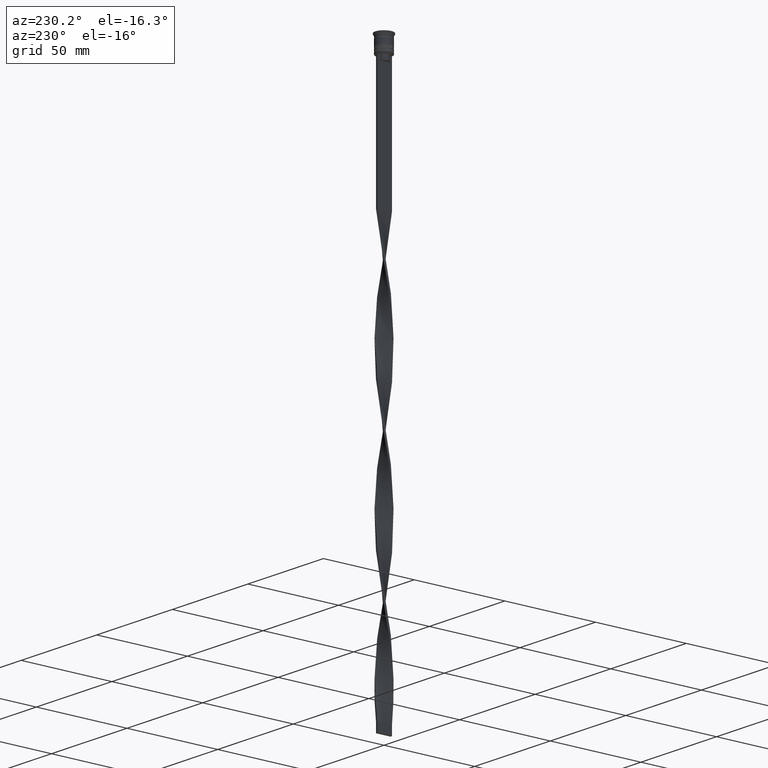
[diagram: clean part render]
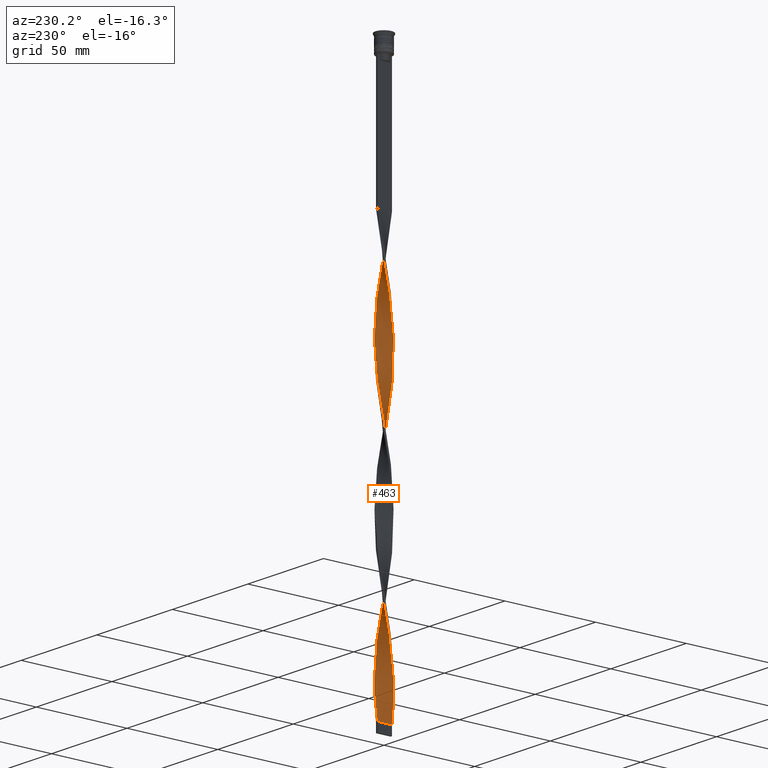
[diagram: same view with one face highlighted and labeled with its STEP entity id]
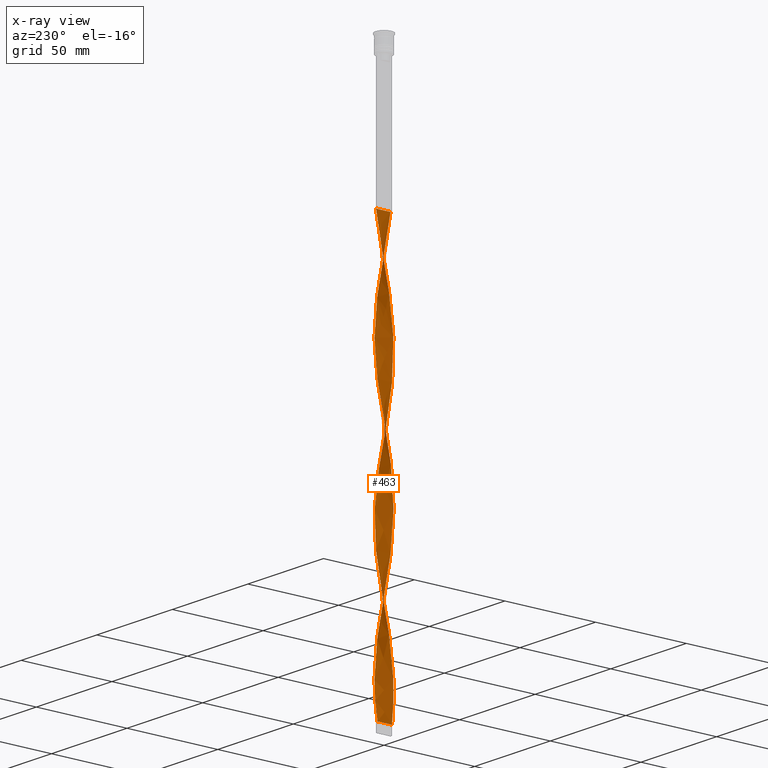
[diagram: x-ray of the same camera — body ghosted, the highlighted face saturated]
A machine part, auxiliary view. The second image highlights one B-rep face of the part: STEP entity #463.
The next image is the same camera in x-ray: the body ghosted, the highlighted face saturated — about 0% of this face is hidden behind the body in this view.
In plain terms, the highlighted face is a freeform B-spline surface patch.
Its self-contained STEP definition (entity closure, byte-faithful):
#4 = CARTESIAN_POINT ( 'NONE',  ( 1.775272850193347685, 3.634553836156354745, -139.5921052631579187 ) ) ;
#24 = CARTESIAN_POINT ( 'NONE',  ( -1.151559012824296291, 3.863147918470523301, -157.4736842105263293 ) ) ;
#38 =( BOUNDED_CURVE ( )  B_SPLINE_CURVE ( 2, ( #3743, #976, #2867, #1927, #2583, #682, #3154, #3173, #72, #3802, #2284, #3113, #371, #2251, #1000, #1307, #656, #3469, #1592, #714, #1035, #3503, #734, #1961, #2834, #3192, #409, #329, #1903, #2851, #1610, #1571, #2545, #3765, #91, #697, #3136, #1944, #387, #2512, #3727, #959, #2210, #3430, #2947, #2599, #1425, #2648, #2361, #2379, #2685, #1365, #2665, #3214, #3883, #2907, #185, #202, #1747, #3846, #3525, #2627, #493, #3908, #2022, #165, #2985, #2342, #1406, #1119, #795, #1448, #3822, #1143, #3289, #756, #3861, #2064, #3603, #3584, #1058, #3559, #1389, #470, #1078, #449, #816, #1984, #433, #2923, #2005, #1667, #2043, #3230, #130, #2308, #3543, #1098, #3270, #1728, #1685, #2325, #146, #775, #2966, #3246, #1707, #508, #552, #2768, #1222, #912, #2394, #570, #2125 ),
 .UNSPECIFIED., .F., .T. ) 
 B_SPLINE_CURVE_WITH_KNOTS ( ( 3, 2, 2, 2, 2, 2, 2, 2, 2, 2, 2, 2, 2, 2, 2, 2, 2, 2, 2, 2, 2, 2, 2, 2, 2, 2, 2, 2, 2, 2, 2, 2, 2, 2, 2, 2, 2, 2, 2, 2, 2, 2, 2, 2, 2, 2, 2, 2, 2, 2, 2, 2, 2, 2, 2, 2, 2, 3 ),
 ( 0.000000000000000000, 0.01315789473684210453, 0.02631578947368420907, 0.03947368421052631360, 0.05263157894736841813, 0.06578947368421052266, 0.07894736842105262720, 0.09210526315789473173, 0.1052631578947368363, 0.1184210526315789408, 0.1315789473684210453, 0.1447368421052631637, 0.1578947368421052544, 0.1710526315789473728, 0.1842105263157894635, 0.1973684210526315541, 0.2105263157894736725, 0.2236842105263157909, 0.2368421052631578816, 0.2500000000000000000, 0.2631578947368420907, 0.2763157894736842368, 0.2894736842105263275, 0.3026315789473684181, 0.3157894736842105088, 0.3289473684210526550, 0.3421052631578947456, 0.3552631578947368918, 0.3684210526315789269, 0.3815789473684210731, 0.3947368421052631082, 0.4078947368421052544, 0.4210526315789473450, 0.4342105263157895467, 0.4473684210526315819, 0.4605263157894736725, 0.4736842105263157632, 0.4868421052631579093, 0.5000000000000000000, 0.5131578947368421462, 0.5263157894736841813, 0.5394736842105263275, 0.5526315789473684736, 0.5657894736842105088, 0.5789473684210526550, 0.5921052631578946901, 0.6052631578947368363, 0.6184210526315789824, 0.6315789473684210176, 0.6447368421052631637, 0.6578947368421053099, 0.6710526315789473450, 0.6842105263157894912, 0.6973684210526315264, 0.7105263157894737835, 0.7236842105263158187, 0.7368421052631578538, 0.7500000000000000000 ),
 .UNSPECIFIED. ) 
 CURVE ( )  GEOMETRIC_REPRESENTATION_ITEM ( )  RATIONAL_B_SPLINE_CURVE ( ( 1.000000000000000000, 0.9965844930066698470, 1.000000000000000000, 0.9965844930066698470, 1.000000000000000000, 0.9965844930066698470, 1.000000000000000000, 0.9965844930066698470, 1.000000000000000000, 0.9965844930066698470, 1.000000000000000000, 0.9965844930066698470, 1.000000000000000000, 0.9965844930066698470, 1.000000000000000000, 0.9965844930066698470, 1.000000000000000000, 0.9965844930066698470, 1.000000000000000000, 0.9965844930066698470, 1.000000000000000000, 0.9965844930066698470, 1.000000000000000000, 0.9965844930066698470, 1.000000000000000000, 0.9965844930066698470, 1.000000000000000000, 0.9965844930066698470, 1.000000000000000000, 0.9965844930066698470, 1.000000000000000000, 0.9965844930066698470, 1.000000000000000000, 0.9965844930066698470, 1.000000000000000000, 0.9965844930066698470, 1.000000000000000000, 0.9965844930066698470, 1.000000000000000000, 0.9965844930066698470, 1.000000000000000000, 0.9965844930066698470, 1.000000000000000000, 0.9965844930066698470, 1.000000000000000000, 0.9965844930066698470, 1.000000000000000000, 0.9965844930066698470, 1.000000000000000000, 0.9965844930066698470, 1.000000000000000000, 0.9965844930066698470, 1.000000000000000000, 0.9965844930066698470, 1.000000000000000000, 0.9965844930066698470, 1.000000000000000000, 0.9965844930066698470, 1.000000000000000000, 0.9965844930066698470, 1.000000000000000000, 0.9965844930066698470, 1.000000000000000000, 0.9965844930066698470, 1.000000000000000000, 0.9965844930066698470, 1.000000000000000000, 0.9965844930066698470, 1.000000000000000000, 0.9965844930066698470, 1.000000000000000000, 0.9965844930066698470, 1.000000000000000000, 0.9965844930066698470, 1.000000000000000000, 0.9965844930066698470, 1.000000000000000000, 0.9965844930066698470, 1.000000000000000000, 0.9965844930066698470, 1.000000000000000000, 0.9965844930066698470, 1.000000000000000000, 0.9965844930066698470, 1.000000000000000000, 0.9965844930066698470, 1.000000000000000000, 0.9965844930066698470, 1.000000000000000000, 0.9965844930066698470, 1.000000000000000000, 0.9965844930066698470, 1.000000000000000000, 0.9965844930066698470, 1.000000000000000000, 0.9965844930066698470, 1.000000000000000000, 0.9965844930066698470, 1.000000000000000000, 0.9965844930066698470, 1.000000000000000000, 0.9965844930066698470, 1.000000000000000000, 0.9965844930066698470, 1.000000000000000000, 0.9965844930066698470, 1.000000000000000000, 0.9965844930066698470, 1.000000000000000000, 0.9965844930066698470, 1.000000000000000000, 0.9965844930066698470, 1.000000000000000000, 0.9965844930066698470, 1.000000000000000000 ) ) 
 REPRESENTATION_ITEM ( '' )  );
#48 = CARTESIAN_POINT ( 'NONE',  ( -3.291162296146092014, -2.351558211267342990, -203.1710526315789309 ) ) ;
#66 = CARTESIAN_POINT ( 'NONE',  ( 3.945048299290513150, 0.8286096283926639439, -117.7368421052631646 ) ) ;
#72 = CARTESIAN_POINT ( 'NONE',  ( -2.062280596060474647, 3.463668393930408484, -93.89473684210526017 ) ) ;
#81 = CARTESIAN_POINT ( 'NONE',  ( 0.4989459690400829261, 4.014053836277128973, -147.5394736842105203 ) ) ;
#91 = CARTESIAN_POINT ( 'NONE',  ( -1.771706497669051972, -3.620919232200196625, -145.5526315789473699 ) ) ;
#98 = CARTESIAN_POINT ( 'NONE',  ( 0.1651977094215750508, 4.027742508751256167, -149.5263157894736707 ) ) ;
#105 = CARTESIAN_POINT ( 'NONE',  ( -0.1651977094215744957, 4.027742508751256167, -81.97368421052631504 ) ) ;
#111 = LINE ( 'NONE', #2565, #3903 ) ;
#119 = CARTESIAN_POINT ( 'NONE',  ( 0.8314494498030671199, -3.958568818774615750, -230.9868421052631220 ) ) ;
#124 = CARTESIAN_POINT ( 'NONE',  ( -1.152832542896750967, 3.877183566532631520, -87.93421052631578050 ) ) ;
#130 = CARTESIAN_POINT ( 'NONE',  ( -3.945048299290513150, 0.8286096283926643880, -264.7631578947368780 ) ) ;
#136 = CARTESIAN_POINT ( 'NONE',  ( 2.859221371831710545, 2.861193531974598692, -131.6447368421052602 ) ) ;
#138 = CARTESIAN_POINT ( 'NONE',  ( 3.462245594293745565, 2.064668361939405727, -276.6842105263158373 ) ) ;
#146 = CARTESIAN_POINT ( 'NONE',  ( -3.622139992111327977, -1.769209393358442517, -280.6578947368420813 ) ) ;
#153 = CARTESIAN_POINT ( 'NONE',  ( 0.5000000000000000000, -4.000000000000000000, -78.00000000000000000 ) ) ;
#157 = CARTESIAN_POINT ( 'NONE',  ( 3.281536428505396952, -2.341264331166398982, -248.8684210526315610 ) ) ;
#160 = CARTESIAN_POINT ( 'NONE',  ( 0.1651977094215738573, -4.027742508751257056, -157.4736842105263293 ) ) ;
#165 = CARTESIAN_POINT ( 'NONE',  ( 3.475539122107559997, 2.069348470232188930, -207.1447368421052317 ) ) ;
#172 = CARTESIAN_POINT ( 'NONE',  ( 3.959141175778332133, -0.8287197540840016696, -107.8026315789473557 ) ) ;
#176 = CARTESIAN_POINT ( 'NONE',  ( 0.8258892559684172241, 3.945618701404880024, -296.5526315789473983 ) ) ;
#180 = CARTESIAN_POINT ( 'NONE',  ( -3.945048299290513150, 0.8286096283926643880, -113.7631578947368496 ) ) ;
#185 = CARTESIAN_POINT ( 'NONE',  ( 3.945048299290513150, -0.8286096283926659423, -189.2631578947368496 ) ) ;
#190 = CARTESIAN_POINT ( 'NONE',  ( -1.771706497669051084, 3.620919232200197069, -161.4473684210526301 ) ) ;
#196 = CARTESIAN_POINT ( 'NONE',  ( 0.5000000000000000000, 4.000000000000000000, -228.9999999999999716 ) ) ;
#202 = CARTESIAN_POINT ( 'NONE',  ( 4.013708850648581183, -0.5017136063310734251, -191.2499999999999716 ) ) ;
#210 = CARTESIAN_POINT ( 'NONE',  ( -3.075191833988901724, -2.606375871620970841, -205.1578947368420813 ) ) ;
#218 = CARTESIAN_POINT ( 'NONE',  ( 0.1685505501969329079, 4.041431181225382474, -230.9868421052631220 ) ) ;
#225 = B_SPLINE_CURVE_WITH_KNOTS ( 'NONE', 3,
 ( #2302, #2001, #2643, #770 ),
 .UNSPECIFIED., .F., .F.,
 ( 4, 4 ),
 ( 0.000000000000000000, 1.000000000000000000 ),
 .UNSPECIFIED. ) ;
#229 = CARTESIAN_POINT ( 'NONE',  ( 2.859221371831710545, 2.861193531974598692, -282.6447368421052033 ) ) ;
#234 = CARTESIAN_POINT ( 'NONE',  ( -3.768740862115096402, -1.469070316484696548, -278.6710526315789025 ) ) ;
#246 = CARTESIAN_POINT ( 'NONE',  ( 4.013708850648581183, 0.5017136063310724259, -266.7499999999999432 ) ) ;
#251 = CARTESIAN_POINT ( 'NONE',  ( -3.075191833988900836, 2.606375871620972173, -252.8421052631579187 ) ) ;
#264 = CARTESIAN_POINT ( 'NONE',  ( -3.291162296146092014, -2.351558211267342990, -203.1710526315789593 ) ) ;
#274 = CARTESIAN_POINT ( 'NONE',  ( -4.013708850648581183, 0.5017136063310728700, -266.7499999999999432 ) ) ;
#297 = VERTEX_POINT ( 'NONE', #651 ) ;
#301 = CARTESIAN_POINT ( 'NONE',  ( 1.471668575845526350, -3.767727018166428632, -83.96052631578946546 ) ) ;
#318 = CARTESIAN_POINT ( 'NONE',  ( 2.615308476010501426, -3.085731170380873412, -91.90789473684208133 ) ) ;
#329 = CARTESIAN_POINT ( 'NONE',  ( -3.475539122107559553, -2.069348470232189374, -131.6447368421052602 ) ) ;
#341 = CARTESIAN_POINT ( 'NONE',  ( -3.754858320186922338, -1.466642081532860464, -197.2105263157894797 ) ) ;
#353 = DIRECTION ( 'NONE',  ( 0.000000000000000000, 1.000000000000000000, 0.000000000000000000 ) ) ;
#363 = CARTESIAN_POINT ( 'NONE',  ( -3.863941018946714046, 1.148895035284350996, -181.3157894736842195 ) ) ;
#371 = CARTESIAN_POINT ( 'NONE',  ( -3.075191833988900836, 2.606375871620972173, -101.8421052631579045 ) ) ;
#379 = CARTESIAN_POINT ( 'NONE',  ( 1.152832542896752965, 3.877183566532631076, -143.5657894736842195 ) ) ;
#387 = CARTESIAN_POINT ( 'NONE',  ( -0.5000000000000005551, -4.000000000000000000, -153.5000000000000000 ) ) ;
#398 = CARTESIAN_POINT ( 'NONE',  ( 2.062280596060475091, 3.463668393930408040, -288.6052631578947398 ) ) ;
#402 = CARTESIAN_POINT ( 'NONE',  ( 2.062280596060474647, -3.463668393930408929, -169.3947368421052602 ) ) ;
#409 = CARTESIAN_POINT ( 'NONE',  ( -3.622139992111327977, -1.769209393358442517, -129.6578947368421098 ) ) ;
#417 = CARTESIAN_POINT ( 'NONE',  ( -0.8314494498030657876, 3.958568818774615750, -155.4868421052631504 ) ) ;
#422 = CARTESIAN_POINT ( 'NONE',  ( 3.754858320186921894, 1.466642081532861797, -272.7105263157894797 ) ) ;
#427 = CARTESIAN_POINT ( 'NONE',  ( -3.075191833988900836, 2.606375871620972173, -101.8421052631579045 ) ) ;
#433 = CARTESIAN_POINT ( 'NONE',  ( -3.075191833988900836, 2.606375871620972173, -252.8421052631579187 ) ) ;
#439 = CARTESIAN_POINT ( 'NONE',  ( 2.343526447751538733, -3.279921308307419903, -89.92105263157894512 ) ) ;
#441 = CARTESIAN_POINT ( 'NONE',  ( 2.604254856879656632, 3.076988241839529348, -284.6315789473683822 ) ) ;
#444 = CARTESIAN_POINT ( 'NONE',  ( -3.087533734903234350, -2.613180192100606813, -135.6184210526315610 ) ) ;
#449 = CARTESIAN_POINT ( 'NONE',  ( -2.349288341927600499, 3.292782951704461336, -246.8815789473684390 ) ) ;
#457 = VERTEX_POINT ( 'NONE', #2642 ) ;
#458 = CARTESIAN_POINT ( 'NONE',  ( -0.1685505501969314646, 4.041431181225382474, -302.5131578947367643 ) ) ;
#461 = CARTESIAN_POINT ( 'NONE',  ( -2.851421105456868776, -2.849455681240740113, -137.6052631578947398 ) ) ;
#463 = ADVANCED_FACE ( 'NONE', ( #3840 ), #2650, .T. ) ;
#470 = CARTESIAN_POINT ( 'NONE',  ( -1.775272850193347685, 3.634553836156354745, -242.9078947368421098 ) ) ;
#481 = CARTESIAN_POINT ( 'NONE',  ( 3.622139992111327533, -1.769209393358443627, -101.8421052631579045 ) ) ;
#484 = CARTESIAN_POINT ( 'NONE',  ( 0.4989459690400829261, 4.014053836277128973, -298.5394736842104635 ) ) ;
#489 = CARTESIAN_POINT ( 'NONE',  ( 1.464052696545049548, -3.755868701344493132, -165.4210526315789593 ) ) ;
#493 = CARTESIAN_POINT ( 'NONE',  ( 3.863941018946714490, 1.148895035284349442, -201.1842105263158089 ) ) ;
#498 = CARTESIAN_POINT ( 'NONE',  ( 3.075191833988901280, 2.606375871620971285, -129.6578947368421098 ) ) ;
#504 = CARTESIAN_POINT ( 'NONE',  ( -2.604254856879656188, 3.076988241839530236, -248.8684210526315610 ) ) ;
#508 = CARTESIAN_POINT ( 'NONE',  ( -2.615308476010500982, -3.085731170380873412, -290.5921052631578050 ) ) ;
#513 = CARTESIAN_POINT ( 'NONE',  ( -3.475539122107559109, 2.069348470232190262, -175.3552631578947398 ) ) ;
#519 = CARTESIAN_POINT ( 'NONE',  ( 3.768740862115096846, 1.469070316484694327, -203.1710526315789309 ) ) ;
#533 = CARTESIAN_POINT ( 'NONE',  ( -1.151559012824296291, 3.863147918470523301, -157.4736842105263293 ) ) ;
#542 = CARTESIAN_POINT ( 'NONE',  ( -4.000343807327721102, -0.4972418155935313666, -272.7105263157894797 ) ) ;
#552 = CARTESIAN_POINT ( 'NONE',  ( -2.343526447751539177, -3.279921308307419459, -292.5789473684210407 ) ) ;
#557 = CARTESIAN_POINT ( 'NONE',  ( -4.027627644762845627, -0.1679748646140039048, -189.2631578947368496 ) ) ;
#564 = CARTESIAN_POINT ( 'NONE',  ( 3.959141175778333022, 0.8287197540840007814, -199.1973684210526017 ) ) ;
#570 = CARTESIAN_POINT ( 'NONE',  ( -0.8314494498030685632, -3.958568818774615750, -302.5131578947368212 ) ) ;
#576 = CARTESIAN_POINT ( 'NONE',  ( -1.775272850193348129, -3.634553836156354745, -215.0921052631578902 ) ) ;
#582 = CARTESIAN_POINT ( 'NONE',  ( 2.615308476010501870, 3.085731170380873412, -215.0921052631578902 ) ) ;
#597 = CARTESIAN_POINT ( 'NONE',  ( -3.633328892441399116, -1.777778512611467132, -199.1973684210526017 ) ) ;
#607 = CARTESIAN_POINT ( 'NONE',  ( -2.615308476010500538, 3.085731170380873856, -167.4078947368420813 ) ) ;
#630 = CARTESIAN_POINT ( 'NONE',  ( -3.281536428505396064, 2.341264331166400314, -173.3684210526315610 ) ) ;
#642 = CARTESIAN_POINT ( 'NONE',  ( -0.1685505501969314646, 4.041431181225382474, -302.5131578947368212 ) ) ;
#648 = CARTESIAN_POINT ( 'NONE',  ( -3.876387747932445560, -1.155505650454253574, -195.2236842105263008 ) ) ;
#651 = CARTESIAN_POINT ( 'NONE',  ( 0.5000000000000000000, -4.000000000000000000, -78.00000000000000000 ) ) ;
#652 = CARTESIAN_POINT ( 'NONE',  ( 0.5000000000000000000, 4.000000000000000000, -78.00000000000000000 ) ) ;
#656 = CARTESIAN_POINT ( 'NONE',  ( -3.754858320186921894, 1.466642081532862241, -109.7894736842105203 ) ) ;
#669 = CARTESIAN_POINT ( 'NONE',  ( 3.768740862115096402, -1.469070316484696770, -103.8289473684210265 ) ) ;
#682 = CARTESIAN_POINT ( 'NONE',  ( -1.152832542896751189, 3.877183566532631520, -87.93421052631578050 ) ) ;
#684 = CARTESIAN_POINT ( 'NONE',  ( 1.775272850193347685, 3.634553836156354745, -290.5921052631578050 ) ) ;
#691 = CARTESIAN_POINT ( 'NONE',  ( 3.462245594293745565, 2.064668361939405727, -125.6842105263157805 ) ) ;
#697 = CARTESIAN_POINT ( 'NONE',  ( -1.471668575845527682, -3.767727018166428188, -147.5394736842105203 ) ) ;
#714 = CARTESIAN_POINT ( 'NONE',  ( -4.013708850648581183, 0.5017136063310728700, -115.7499999999999858 ) ) ;
#721 = CARTESIAN_POINT ( 'NONE',  ( 2.604254856879656632, 3.076988241839529348, -133.6315789473684390 ) ) ;
#724 = CARTESIAN_POINT ( 'NONE',  ( -1.775272850193348129, -3.634553836156354745, -215.0921052631578902 ) ) ;
#728 = CARTESIAN_POINT ( 'NONE',  ( 0.1685505501969329079, 4.041431181225382474, -79.98684210526316463 ) ) ;
#734 = CARTESIAN_POINT ( 'NONE',  ( -4.000343807327721102, -0.4972418155935313666, -121.7105263157894797 ) ) ;
#745 = CARTESIAN_POINT ( 'NONE',  ( 4.000343807327721102, -0.4972418155935317552, -260.7894736842105203 ) ) ;
#749 = CARTESIAN_POINT ( 'NONE',  ( -3.863941018946714934, -1.148895035284348332, -125.6842105263157805 ) ) ;
#756 = CARTESIAN_POINT ( 'NONE',  ( 0.8314494498030690073, 3.958568818774615750, -227.0131578947368212 ) ) ;
#762 = CARTESIAN_POINT ( 'NONE',  ( 3.876387747932445116, 1.155505650454255573, -119.7236842105263150 ) ) ;
#765 = CARTESIAN_POINT ( 'NONE',  ( -1.464052696545052212, -3.755868701344492244, -217.0789473684210407 ) ) ;
#769 = CARTESIAN_POINT ( 'NONE',  ( -1.464052696545049548, 3.755868701344493132, -89.92105263157894512 ) ) ;
#770 = CARTESIAN_POINT ( 'NONE',  ( -0.4999999999999994449, 4.000000000000000000, -304.5000000000000000 ) ) ;
#775 = CARTESIAN_POINT ( 'NONE',  ( -3.475539122107559553, -2.069348470232189374, -282.6447368421052033 ) ) ;
#781 = CARTESIAN_POINT ( 'NONE',  ( 2.062280596060475091, 3.463668393930408040, -137.6052631578947398 ) ) ;
#783 = CARTESIAN_POINT ( 'NONE',  ( 3.959141175778332133, -0.8287197540840015586, -258.8026315789473415 ) ) ;
#795 = CARTESIAN_POINT ( 'NONE',  ( 2.343526447751540953, 3.279921308307418126, -217.0789473684210407 ) ) ;
#810 = CARTESIAN_POINT ( 'NONE',  ( 1.775272850193346796, -3.634553836156355633, -167.4078947368420813 ) ) ;
#816 = CARTESIAN_POINT ( 'NONE',  ( -2.604254856879656188, 3.076988241839530236, -248.8684210526315610 ) ) ;
#822 = CARTESIAN_POINT ( 'NONE',  ( 3.768740862115096402, -1.469070316484696770, -254.8289473684210407 ) ) ;
#829 = ORIENTED_EDGE ( 'NONE', *, *, #3517, .F. ) ;
#830 = CARTESIAN_POINT ( 'NONE',  ( -2.859221371831710989, 2.861193531974598692, -250.8552631578947683 ) ) ;
#840 = CARTESIAN_POINT ( 'NONE',  ( -3.281536428505396064, 2.341264331166400314, -173.3684210526315610 ) ) ;
#849 = CARTESIAN_POINT ( 'NONE',  ( -3.754858320186921894, 1.466642081532862241, -260.7894736842105203 ) ) ;
#864 = CARTESIAN_POINT ( 'NONE',  ( 3.959141175778332133, -0.8287197540840016696, -258.8026315789473415 ) ) ;
#871 = CARTESIAN_POINT ( 'NONE',  ( -1.775272850193347685, 3.634553836156354745, -242.9078947368421098 ) ) ;
#882 = CARTESIAN_POINT ( 'NONE',  ( -2.071744419492575151, 3.474111446233965950, -163.4342105263157805 ) ) ;
#890 = EDGE_CURVE ( 'NONE', #457, #3550, #225, .T. ) ;
#892 = CARTESIAN_POINT ( 'NONE',  ( -2.071744419492577371, -3.474111446233965061, -294.5657894736841627 ) ) ;
#902 = CARTESIAN_POINT ( 'NONE',  ( -3.462245594293745121, -2.064668361939406616, -201.1842105263158089 ) ) ;
#907 = CARTESIAN_POINT ( 'NONE',  ( 3.633328892441398672, 1.777778512611467576, -123.6973684210526443 ) ) ;
#912 = CARTESIAN_POINT ( 'NONE',  ( -1.471668575845527682, -3.767727018166428188, -298.5394736842104635 ) ) ;
#928 = CARTESIAN_POINT ( 'NONE',  ( 3.075191833988901280, 2.606375871620971285, -129.6578947368421098 ) ) ;
#943 = CARTESIAN_POINT ( 'NONE',  ( 0.1651977094215750508, 4.027742508751256167, -300.5263157894736992 ) ) ;
#951 = CARTESIAN_POINT ( 'NONE',  ( 3.959141175778332133, -0.8287197540840015586, -107.8026315789473557 ) ) ;
#959 = CARTESIAN_POINT ( 'NONE',  ( 0.4989459690400802616, -4.014053836277129861, -159.4605263157894797 ) ) ;
#962 = CARTESIAN_POINT ( 'NONE',  ( 0.8258892559684172241, 3.945618701404880024, -296.5526315789473983 ) ) ;
#970 = CARTESIAN_POINT ( 'NONE',  ( -0.8314494498030657876, 3.958568818774615750, -155.4868421052631220 ) ) ;
#976 = CARTESIAN_POINT ( 'NONE',  ( 0.1685505501969328801, 4.041431181225382474, -79.98684210526316463 ) ) ;
#989 = CARTESIAN_POINT ( 'NONE',  ( 3.291162296146090682, 2.351558211267345211, -127.6710526315789735 ) ) ;
#1000 = CARTESIAN_POINT ( 'NONE',  ( -3.462245594293745121, 2.064668361939406616, -105.8157894736842053 ) ) ;
#1010 = CARTESIAN_POINT ( 'NONE',  ( -0.4999999999999994449, 4.000000000000000000, -304.5000000000000000 ) ) ;
#1028 = CARTESIAN_POINT ( 'NONE',  ( 4.041546438877107406, -0.1657638771030618408, -262.7763157894735855 ) ) ;
#1031 = CARTESIAN_POINT ( 'NONE',  ( 3.075191833988900836, -2.606375871620972173, -177.3421052631579187 ) ) ;
#1035 = CARTESIAN_POINT ( 'NONE',  ( -4.027627644762845627, 0.1679748646140058199, -117.7368421052631646 ) ) ;
#1041 = CARTESIAN_POINT ( 'NONE',  ( 2.071744419492576039, -3.474111446233965506, -87.93421052631578050 ) ) ;
#1047 = CARTESIAN_POINT ( 'NONE',  ( 3.863941018946714490, -1.148895035284349442, -256.8157894736842195 ) ) ;
#1058 = CARTESIAN_POINT ( 'NONE',  ( -0.8258892559684165580, 3.945618701404880024, -236.9473684210526301 ) ) ;
#1065 = CARTESIAN_POINT ( 'NONE',  ( 3.754858320186921894, 1.466642081532861797, -121.7105263157894797 ) ) ;
#1078 = CARTESIAN_POINT ( 'NONE',  ( -2.062280596060474647, 3.463668393930408484, -244.8947368421052886 ) ) ;
#1093 = CARTESIAN_POINT ( 'NONE',  ( 0.4989459690400802061, -4.014053836277129861, -159.4605263157894797 ) ) ;
#1098 = CARTESIAN_POINT ( 'NONE',  ( -4.041546438877109182, -0.1657638771030611746, -270.7236842105263008 ) ) ;
#1103 = CARTESIAN_POINT ( 'NONE',  ( 3.945048299290513150, 0.8286096283926639439, -117.7368421052631646 ) ) ;
#1112 = CARTESIAN_POINT ( 'NONE',  ( -2.343526447751539177, -3.279921308307419459, -141.5789473684210407 ) ) ;
#1119 = CARTESIAN_POINT ( 'NONE',  ( 2.615308476010501426, 3.085731170380873412, -215.0921052631578902 ) ) ;
#1129 = CARTESIAN_POINT ( 'NONE',  ( -2.062280596060475979, -3.463668393930407596, -213.1052631578947398 ) ) ;
#1137 = CARTESIAN_POINT ( 'NONE',  ( 3.087533734903235683, 2.613180192100605037, -211.1184210526315326 ) ) ;
#1143 = CARTESIAN_POINT ( 'NONE',  ( 1.471668575845526794, 3.767727018166428188, -223.0394736842104919 ) ) ;
#1150 = CARTESIAN_POINT ( 'NONE',  ( -4.013708850648581183, -0.5017136063310718708, -191.2499999999999716 ) ) ;
#1156 = CARTESIAN_POINT ( 'NONE',  ( 0.8314494498030688963, 3.958568818774615750, -227.0131578947368212 ) ) ;
#1169 = CARTESIAN_POINT ( 'NONE',  ( 2.343526447751538733, -3.279921308307419903, -240.9210526315789309 ) ) ;
#1175 = CARTESIAN_POINT ( 'NONE',  ( -3.087533734903234350, -2.613180192100606813, -286.6184210526315042 ) ) ;
#1191 = CARTESIAN_POINT ( 'NONE',  ( -2.615308476010500538, 3.085731170380874300, -167.4078947368420813 ) ) ;
#1200 = CARTESIAN_POINT ( 'NONE',  ( -3.633328892441398672, 1.777778512611468020, -258.8026315789473415 ) ) ;
#1209 = CARTESIAN_POINT ( 'NONE',  ( -2.851421105456868332, 2.849455681240740557, -169.3947368421052602 ) ) ;
#1215 = CARTESIAN_POINT ( 'NONE',  ( 3.863941018946714490, 1.148895035284349442, -201.1842105263158089 ) ) ;
#1222 = CARTESIAN_POINT ( 'NONE',  ( -1.771706497669051972, -3.620919232200196625, -296.5526315789473983 ) ) ;
#1237 = CARTESIAN_POINT ( 'NONE',  ( 3.475539122107559997, -2.069348470232189818, -99.85526315789472562 ) ) ;
#1241 = CARTESIAN_POINT ( 'NONE',  ( -0.4999999999999994449, 4.000000000000000000, -304.5000000000000000 ) ) ;
#1262 = CARTESIAN_POINT ( 'NONE',  ( -4.013708850648581183, -0.5017136063310719818, -191.2499999999999432 ) ) ;
#1284 = CARTESIAN_POINT ( 'NONE',  ( 4.027627644762845627, 0.1679748646140053203, -113.7631578947368496 ) ) ;
#1299 = CARTESIAN_POINT ( 'NONE',  ( -3.075191833988901724, -2.606375871620970841, -205.1578947368420813 ) ) ;
#1307 = CARTESIAN_POINT ( 'NONE',  ( -3.633328892441399116, 1.777778512611468020, -107.8026315789473557 ) ) ;
#1318 = CARTESIAN_POINT ( 'NONE',  ( 2.349288341927600499, 3.292782951704461780, -135.6184210526315610 ) ) ;
#1337 = CARTESIAN_POINT ( 'NONE',  ( -0.4999999999999994449, 4.000000000000000000, -153.5000000000000000 ) ) ;
#1339 = CARTESIAN_POINT ( 'NONE',  ( 1.471668575845526350, -3.767727018166428632, -234.9605263157894228 ) ) ;
#1342 = CARTESIAN_POINT ( 'NONE',  ( -4.000343807327721102, -0.4972418155935313666, -121.7105263157894797 ) ) ;
#1353 = CARTESIAN_POINT ( 'NONE',  ( 4.041546438877108294, -0.1657638771030618130, -111.7763157894736850 ) ) ;
#1356 = CARTESIAN_POINT ( 'NONE',  ( 2.859221371831710989, 2.861193531974598692, -282.6447368421052033 ) ) ;
#1360 = CARTESIAN_POINT ( 'NONE',  ( -3.633328892441398672, 1.777778512611468020, -107.8026315789473557 ) ) ;
#1365 = CARTESIAN_POINT ( 'NONE',  ( 3.291162296146088906, -2.351558211267347431, -179.3289473684210691 ) ) ;
#1372 = CARTESIAN_POINT ( 'NONE',  ( 4.013708850648581183, 0.5017136063310724259, -115.7499999999999858 ) ) ;
#1376 = CARTESIAN_POINT ( 'NONE',  ( 0.1685505501969309927, -4.041431181225382474, -227.0131578947368212 ) ) ;
#1380 = CARTESIAN_POINT ( 'NONE',  ( -2.615308476010501426, -3.085731170380873412, -139.5921052631579187 ) ) ;
#1389 = CARTESIAN_POINT ( 'NONE',  ( -1.464052696545049548, 3.755868701344493132, -240.9210526315789309 ) ) ;
#1399 = CARTESIAN_POINT ( 'NONE',  ( -0.1651977094215772157, -4.027742508751256167, -225.0263157894736992 ) ) ;
#1402 = CARTESIAN_POINT ( 'NONE',  ( -1.151559012824297401, -3.863147918470522413, -149.5263157894736707 ) ) ;
#1406 = CARTESIAN_POINT ( 'NONE',  ( 2.851421105456868776, 2.849455681240739668, -213.1052631578947398 ) ) ;
#1411 = CARTESIAN_POINT ( 'NONE',  ( 4.000343807327721102, -0.4972418155935317552, -109.7894736842105203 ) ) ;
#1418 = CARTESIAN_POINT ( 'NONE',  ( -4.027627644762845627, 0.1679748646140058199, -117.7368421052631646 ) ) ;
#1425 = CARTESIAN_POINT ( 'NONE',  ( 2.062280596060474647, -3.463668393930408929, -169.3947368421052602 ) ) ;
#1430 = CARTESIAN_POINT ( 'NONE',  ( 3.945048299290513150, 0.8286096283926639439, -268.7368421052631788 ) ) ;
#1438 = CARTESIAN_POINT ( 'NONE',  ( 0.5000000000000000000, -4.000000000000000000, -78.00000000000000000 ) ) ;
#1448 = CARTESIAN_POINT ( 'NONE',  ( 2.071744419492578260, 3.474111446233964617, -219.0657894736841911 ) ) ;
#1455 = CARTESIAN_POINT ( 'NONE',  ( -2.859221371831710989, -2.861193531974598248, -207.1447368421052317 ) ) ;
#1465 = CARTESIAN_POINT ( 'NONE',  ( -1.152832542896750967, 3.877183566532631520, -238.9342105263157521 ) ) ;
#1476 = CARTESIAN_POINT ( 'NONE',  ( 3.622139992111327533, -1.769209393358443627, -252.8421052631579187 ) ) ;
#1479 = CARTESIAN_POINT ( 'NONE',  ( -3.475539122107559997, -2.069348470232189818, -282.6447368421052033 ) ) ;
#1490 = CARTESIAN_POINT ( 'NONE',  ( 3.291162296146090682, 2.351558211267345211, -278.6710526315789025 ) ) ;
#1496 = CARTESIAN_POINT ( 'NONE',  ( -3.622139992111327977, -1.769209393358442517, -280.6578947368420813 ) ) ;
#1510 = CARTESIAN_POINT ( 'NONE',  ( 0.1685505501969309927, -4.041431181225382474, -227.0131578947368212 ) ) ;
#1521 = CARTESIAN_POINT ( 'NONE',  ( -3.959141175778332133, -0.8287197540840011145, -274.6973684210525448 ) ) ;
#1540 = CARTESIAN_POINT ( 'NONE',  ( -1.771706497669051084, 3.620919232200197069, -161.4473684210526301 ) ) ;
#1552 = CARTESIAN_POINT ( 'NONE',  ( 2.604254856879656632, 3.076988241839529348, -284.6315789473683822 ) ) ;
#1561 = CARTESIAN_POINT ( 'NONE',  ( 3.622139992111327533, -1.769209393358443627, -101.8421052631579045 ) ) ;
#1571 = CARTESIAN_POINT ( 'NONE',  ( -2.615308476010500982, -3.085731170380873412, -139.5921052631579187 ) ) ;
#1582 = CARTESIAN_POINT ( 'NONE',  ( -3.633328892441399116, -1.777778512611467132, -199.1973684210526017 ) ) ;
#1592 = CARTESIAN_POINT ( 'NONE',  ( -3.945048299290513150, 0.8286096283926643880, -113.7631578947368496 ) ) ;
#1594 = CARTESIAN_POINT ( 'NONE',  ( 2.062280596060475091, 3.463668393930408040, -288.6052631578947398 ) ) ;
#1602 = CARTESIAN_POINT ( 'NONE',  ( -2.071744419492574707, 3.474111446233965950, -163.4342105263157805 ) ) ;
#1610 = CARTESIAN_POINT ( 'NONE',  ( -2.851421105456868776, -2.849455681240740113, -137.6052631578947398 ) ) ;
#1618 = CARTESIAN_POINT ( 'NONE',  ( 3.863941018946714490, -1.148895035284349442, -105.8157894736842053 ) ) ;
#1635 = CARTESIAN_POINT ( 'NONE',  ( 3.075191833988901280, 2.606375871620971285, -280.6578947368420813 ) ) ;
#1641 = CARTESIAN_POINT ( 'NONE',  ( -3.462245594293745121, 2.064668361939406616, -105.8157894736842053 ) ) ;
#1661 = CARTESIAN_POINT ( 'NONE',  ( -1.471668575845527682, -3.767727018166428188, -147.5394736842105203 ) ) ;
#1667 = CARTESIAN_POINT ( 'NONE',  ( -3.633328892441399116, 1.777778512611468020, -258.8026315789473415 ) ) ;
#1674 = CARTESIAN_POINT ( 'NONE',  ( -0.8258892559684176682, -3.945618701404880024, -221.0526315789473983 ) ) ;
#1678 = CARTESIAN_POINT ( 'NONE',  ( -4.041546438877108294, -0.1657638771030611746, -119.7236842105263150 ) ) ;
#1685 = CARTESIAN_POINT ( 'NONE',  ( -3.863941018946714934, -1.148895035284348332, -276.6842105263158373 ) ) ;
#1695 = CARTESIAN_POINT ( 'NONE',  ( 3.087533734903234350, -2.613180192100606813, -246.8815789473684674 ) ) ;
#1700 = CARTESIAN_POINT ( 'NONE',  ( -3.768740862115096402, -1.469070316484696548, -127.6710526315789735 ) ) ;
#1707 = CARTESIAN_POINT ( 'NONE',  ( -2.851421105456868776, -2.849455681240740113, -288.6052631578947398 ) ) ;
#1715 = CARTESIAN_POINT ( 'NONE',  ( 1.471668575845526350, -3.767727018166428632, -83.96052631578946546 ) ) ;
#1724 = CARTESIAN_POINT ( 'NONE',  ( -0.8258892559684165580, 3.945618701404880024, -85.94736842105263008 ) ) ;
#1728 = CARTESIAN_POINT ( 'NONE',  ( -3.959141175778332133, -0.8287197540840012255, -274.6973684210526017 ) ) ;
#1742 = CARTESIAN_POINT ( 'NONE',  ( 3.475539122107560441, 2.069348470232189374, -207.1447368421052317 ) ) ;
#1747 = CARTESIAN_POINT ( 'NONE',  ( 4.027627644762845627, -0.1679748646140054313, -193.2368421052631504 ) ) ;
#1752 = CARTESIAN_POINT ( 'NONE',  ( -4.041546438877108294, 0.1657638771030640612, -187.2763157894736707 ) ) ;
#1759 = CARTESIAN_POINT ( 'NONE',  ( 3.945048299290513150, -0.8286096283926659423, -189.2631578947368496 ) ) ;
#1774 = CARTESIAN_POINT ( 'NONE',  ( 3.863941018946714490, -1.148895035284349442, -256.8157894736842195 ) ) ;
#1783 = CARTESIAN_POINT ( 'NONE',  ( -4.041546438877108294, -0.1657638771030611746, -270.7236842105262440 ) ) ;
#1793 = CARTESIAN_POINT ( 'NONE',  ( 3.475539122107559553, -2.069348470232189374, -250.8552631578947398 ) ) ;
#1800 = CARTESIAN_POINT ( 'NONE',  ( 1.771706497669052194, 3.620919232200196181, -221.0526315789473983 ) ) ;
#1814 = CARTESIAN_POINT ( 'NONE',  ( -0.8258892559684176682, -3.945618701404880024, -221.0526315789473983 ) ) ;
#1823 = CARTESIAN_POINT ( 'NONE',  ( -3.462245594293745121, 2.064668361939406616, -256.8157894736842195 ) ) ;
#1853 = CARTESIAN_POINT ( 'NONE',  ( -2.851421105456868332, 2.849455681240740557, -169.3947368421052602 ) ) ;
#1874 = CARTESIAN_POINT ( 'NONE',  ( -2.343526447751538289, 3.279921308307419903, -165.4210526315789593 ) ) ;
#1892 = CARTESIAN_POINT ( 'NONE',  ( 4.000343807327721102, -0.4972418155935317552, -109.7894736842105203 ) ) ;
#1903 = CARTESIAN_POINT ( 'NONE',  ( -3.281536428505397396, -2.341264331166397206, -133.6315789473684390 ) ) ;
#1916 = CARTESIAN_POINT ( 'NONE',  ( 3.754858320186921894, 1.466642081532861797, -121.7105263157894797 ) ) ;
#1927 = CARTESIAN_POINT ( 'NONE',  ( -0.4989459690400814829, 4.014053836277128973, -83.96052631578946546 ) ) ;
#1936 = CARTESIAN_POINT ( 'NONE',  ( 4.041546438877107406, -0.1657638771030618408, -111.7763157894736850 ) ) ;
#1944 = CARTESIAN_POINT ( 'NONE',  ( -0.8314494498030685632, -3.958568818774615750, -151.5131578947368496 ) ) ;
#1953 = CARTESIAN_POINT ( 'NONE',  ( -2.062280596060475979, -3.463668393930407596, -213.1052631578947398 ) ) ;
#1961 = CARTESIAN_POINT ( 'NONE',  ( -3.959141175778332133, -0.8287197540840012255, -123.6973684210526443 ) ) ;
#1968 = CARTESIAN_POINT ( 'NONE',  ( 0.4989459690400829817, 4.014053836277128973, -147.5394736842105203 ) ) ;
#1971 = CARTESIAN_POINT ( 'NONE',  ( 0.5000000000000000000, -4.000000000000000000, -228.9999999999999716 ) ) ;
#1984 = CARTESIAN_POINT ( 'NONE',  ( -2.859221371831710545, 2.861193531974598692, -250.8552631578947398 ) ) ;
#1994 = CARTESIAN_POINT ( 'NONE',  ( 4.013708850648581183, 0.5017136063310724259, -266.7499999999999432 ) ) ;
#2000 = CARTESIAN_POINT ( 'NONE',  ( -3.622139992111327977, -1.769209393358442517, -129.6578947368421098 ) ) ;
#2001 = CARTESIAN_POINT ( 'NONE',  ( -0.5000000000000002220, -1.333333333333333481, -304.5000000000000000 ) ) ;
#2005 = CARTESIAN_POINT ( 'NONE',  ( -3.462245594293745121, 2.064668361939406616, -256.8157894736842195 ) ) ;
#2015 = CARTESIAN_POINT ( 'NONE',  ( -2.604254856879656188, 3.076988241839530236, -97.86842105263157521 ) ) ;
#2022 = CARTESIAN_POINT ( 'NONE',  ( 3.622139992111328866, 1.769209393358442073, -205.1578947368420813 ) ) ;
#2030 = CARTESIAN_POINT ( 'NONE',  ( 3.863941018946714490, -1.148895035284349442, -105.8157894736842053 ) ) ;
#2032 = CARTESIAN_POINT ( 'NONE',  ( 3.633328892441398672, 1.777778512611467576, -274.6973684210525448 ) ) ;
#2043 = CARTESIAN_POINT ( 'NONE',  ( -3.754858320186921894, 1.466642081532862241, -260.7894736842105203 ) ) ;
#2051 = CARTESIAN_POINT ( 'NONE',  ( 1.464052696545050436, 3.755868701344492688, -141.5789473684210407 ) ) ;
#2059 = CARTESIAN_POINT ( 'NONE',  ( 2.851421105456868776, 2.849455681240739668, -213.1052631578947398 ) ) ;
#2064 = CARTESIAN_POINT ( 'NONE',  ( 0.1685505501969328801, 4.041431181225382474, -230.9868421052631220 ) ) ;
#2071 = CARTESIAN_POINT ( 'NONE',  ( 0.8314494498030671199, -3.958568818774615750, -230.9868421052631220 ) ) ;
#2078 = CARTESIAN_POINT ( 'NONE',  ( 1.151559012824299399, 3.863147918470521969, -225.0263157894736992 ) ) ;
#2087 = CARTESIAN_POINT ( 'NONE',  ( 3.633328892441399116, 1.777778512611467576, -274.6973684210526017 ) ) ;
#2094 = CARTESIAN_POINT ( 'NONE',  ( -4.027627644762845627, 0.1679748646140058199, -268.7368421052631788 ) ) ;
#2107 = CARTESIAN_POINT ( 'NONE',  ( 2.851421105456868332, -2.849455681240740557, -244.8947368421052886 ) ) ;
#2117 = CARTESIAN_POINT ( 'NONE',  ( -0.4989459690400814273, 4.014053836277128973, -234.9605263157894228 ) ) ;
#2125 = CARTESIAN_POINT ( 'NONE',  ( -0.5000000000000005551, -4.000000000000000000, -304.5000000000000000 ) ) ;
#2130 = CARTESIAN_POINT ( 'NONE',  ( -3.622139992111327533, 1.769209393358443627, -177.3421052631579187 ) ) ;
#2136 = CARTESIAN_POINT ( 'NONE',  ( 3.754858320186921894, -1.466642081532861797, -185.2894736842105203 ) ) ;
#2148 = CARTESIAN_POINT ( 'NONE',  ( 3.281536428505396952, -2.341264331166398982, -248.8684210526315610 ) ) ;
#2149 = ORIENTED_EDGE ( 'NONE', *, *, #2576, .T. ) ;
#2156 = CARTESIAN_POINT ( 'NONE',  ( 2.859221371831710989, 2.861193531974598692, -131.6447368421052602 ) ) ;
#2184 = CARTESIAN_POINT ( 'NONE',  ( -0.1685505501969314646, 4.041431181225382474, -151.5131578947368496 ) ) ;
#2202 = CARTESIAN_POINT ( 'NONE',  ( -3.622139992111327533, 1.769209393358443627, -177.3421052631579187 ) ) ;
#2210 = CARTESIAN_POINT ( 'NONE',  ( 0.8258892559684163359, -3.945618701404880913, -161.4473684210526301 ) ) ;
#2220 = CARTESIAN_POINT ( 'NONE',  ( -1.471668575845525240, 3.767727018166429076, -159.4605263157894797 ) ) ;
#2231 = CARTESIAN_POINT ( 'NONE',  ( 0.4989459690400829817, 4.014053836277128973, -298.5394736842104635 ) ) ;
#2240 = CARTESIAN_POINT ( 'NONE',  ( 2.604254856879656632, 3.076988241839529348, -133.6315789473684390 ) ) ;
#2251 = CARTESIAN_POINT ( 'NONE',  ( -3.291162296146090682, 2.351558211267345211, -103.8289473684210407 ) ) ;
#2257 = CARTESIAN_POINT ( 'NONE',  ( 1.151559012824296735, -3.863147918470522413, -232.9736842105263293 ) ) ;
#2271 = CARTESIAN_POINT ( 'NONE',  ( 2.615308476010500982, -3.085731170380873412, -91.90789473684209554 ) ) ;
#2274 = CARTESIAN_POINT ( 'NONE',  ( 3.945048299290513150, 0.8286096283926639439, -268.7368421052631788 ) ) ;
#2278 = CARTESIAN_POINT ( 'NONE',  ( 3.291162296146088906, -2.351558211267347431, -179.3289473684210691 ) ) ;
#2284 = CARTESIAN_POINT ( 'NONE',  ( -2.604254856879656188, 3.076988241839530236, -97.86842105263157521 ) ) ;
#2293 = CARTESIAN_POINT ( 'NONE',  ( 3.768740862115096402, -1.469070316484696770, -103.8289473684210407 ) ) ;
#2295 = CARTESIAN_POINT ( 'NONE',  ( 3.291162296146090682, 2.351558211267345211, -278.6710526315789025 ) ) ;
#2301 = CARTESIAN_POINT ( 'NONE',  ( -2.349288341927600499, 3.292782951704461780, -95.88157894736841058 ) ) ;
#2302 = CARTESIAN_POINT ( 'NONE',  ( -0.5000000000000005551, -4.000000000000000000, -304.5000000000000000 ) ) ;
#2308 = CARTESIAN_POINT ( 'NONE',  ( -4.013708850648581183, 0.5017136063310728700, -266.7499999999999432 ) ) ;
#2316 = CARTESIAN_POINT ( 'NONE',  ( 1.771706497669051306, -3.620919232200196625, -236.9473684210526301 ) ) ;
#2325 = CARTESIAN_POINT ( 'NONE',  ( -3.768740862115096402, -1.469070316484696548, -278.6710526315789025 ) ) ;
#2331 = CARTESIAN_POINT ( 'NONE',  ( 3.462245594293745565, 2.064668361939405727, -125.6842105263157805 ) ) ;
#2337 = CARTESIAN_POINT ( 'NONE',  ( 0.8258892559684163359, -3.945618701404880913, -161.4473684210526301 ) ) ;
#2342 = CARTESIAN_POINT ( 'NONE',  ( 3.087533734903235683, 2.613180192100605037, -211.1184210526315326 ) ) ;
#2347 = CARTESIAN_POINT ( 'NONE',  ( 1.152832542896752965, 3.877183566532631076, -143.5657894736841911 ) ) ;
#2356 = CARTESIAN_POINT ( 'NONE',  ( -2.071744419492577371, -3.474111446233965061, -143.5657894736842195 ) ) ;
#2361 = CARTESIAN_POINT ( 'NONE',  ( 2.604254856879654412, -3.076988241839531568, -173.3684210526315610 ) ) ;
#2368 = CARTESIAN_POINT ( 'NONE',  ( 0.5000000000000000000, -4.000000000000000000, -228.9999999999999716 ) ) ;
#2373 = CARTESIAN_POINT ( 'NONE',  ( 0.8314494498030671199, -3.958568818774615750, -79.98684210526316463 ) ) ;
#2379 = CARTESIAN_POINT ( 'NONE',  ( 2.859221371831710101, -2.861193531974599580, -175.3552631578947398 ) ) ;
#2384 = CARTESIAN_POINT ( 'NONE',  ( -1.464052696545052212, -3.755868701344492244, -217.0789473684210407 ) ) ;
#2389 = CARTESIAN_POINT ( 'NONE',  ( -2.349288341927600499, 3.292782951704461780, -246.8815789473684674 ) ) ;
#2394 = CARTESIAN_POINT ( 'NONE',  ( -1.151559012824297401, -3.863147918470522413, -300.5263157894736992 ) ) ;
#2402 = CARTESIAN_POINT ( 'NONE',  ( 4.000343807327721102, -0.4972418155935317552, -260.7894736842105203 ) ) ;
#2412 = CARTESIAN_POINT ( 'NONE',  ( -2.851421105456868776, -2.849455681240740113, -288.6052631578947398 ) ) ;
#2426 = CARTESIAN_POINT ( 'NONE',  ( -1.471668575845525240, 3.767727018166429076, -159.4605263157894797 ) ) ;
#2434 = CARTESIAN_POINT ( 'NONE',  ( -3.945048299290513150, 0.8286096283926643880, -264.7631578947368780 ) ) ;
#2448 = CARTESIAN_POINT ( 'NONE',  ( -3.768740862115095513, 1.469070316484699212, -179.3289473684210691 ) ) ;
#2457 = CARTESIAN_POINT ( 'NONE',  ( -3.291162296146090682, 2.351558211267345211, -254.8289473684210407 ) ) ;
#2481 = CARTESIAN_POINT ( 'NONE',  ( -4.000343807327721102, 0.4972418155935313666, -185.2894736842105203 ) ) ;
#2503 = CARTESIAN_POINT ( 'NONE',  ( -3.768740862115095513, 1.469070316484698990, -179.3289473684210691 ) ) ;
#2512 = CARTESIAN_POINT ( 'NONE',  ( -0.1685505501969342401, -4.041431181225382474, -155.4868421052631504 ) ) ;
#2520 = CARTESIAN_POINT ( 'NONE',  ( 2.343526447751538733, -3.279921308307419903, -89.92105263157894512 ) ) ;
#2536 = CARTESIAN_POINT ( 'NONE',  ( 3.087533734903234350, -2.613180192100606813, -95.88157894736841058 ) ) ;
#2545 = CARTESIAN_POINT ( 'NONE',  ( -2.343526447751539177, -3.279921308307419459, -141.5789473684210407 ) ) ;
#2555 = CARTESIAN_POINT ( 'NONE',  ( 2.071744419492575595, -3.474111446233965506, -87.93421052631578050 ) ) ;
#2565 = CARTESIAN_POINT ( 'NONE',  ( 0.5000000000000000000, -4.000000000000000000, -78.00000000000000000 ) ) ;
#2573 = CARTESIAN_POINT ( 'NONE',  ( 3.622139992111327533, -1.769209393358443627, -252.8421052631579187 ) ) ;
#2576 = EDGE_CURVE ( 'NONE', #297, #3550, #3876, .T. ) ;
#2577 = CARTESIAN_POINT ( 'NONE',  ( 2.604254856879654412, -3.076988241839531568, -173.3684210526315610 ) ) ;
#2583 = CARTESIAN_POINT ( 'NONE',  ( -0.8258892559684165580, 3.945618701404880024, -85.94736842105263008 ) ) ;
#2594 = CARTESIAN_POINT ( 'NONE',  ( -2.859221371831710989, 2.861193531974598692, -99.85526315789472562 ) ) ;
#2599 = CARTESIAN_POINT ( 'NONE',  ( 1.775272850193346796, -3.634553836156355633, -167.4078947368420813 ) ) ;
#2613 = CARTESIAN_POINT ( 'NONE',  ( 1.464052696545050436, 3.755868701344492688, -292.5789473684210407 ) ) ;
#2618 = CARTESIAN_POINT ( 'NONE',  ( -0.5000000000000005551, -4.000000000000000000, -153.5000000000000000 ) ) ;
#2627 = CARTESIAN_POINT ( 'NONE',  ( 3.959141175778333022, 0.8287197540840007814, -199.1973684210526017 ) ) ;
#2634 = CARTESIAN_POINT ( 'NONE',  ( 1.771706497669051306, -3.620919232200196625, -85.94736842105263008 ) ) ;
#2637 = CARTESIAN_POINT ( 'NONE',  ( 1.152832542896752965, 3.877183566532631076, -294.5657894736841627 ) ) ;
#2642 = CARTESIAN_POINT ( 'NONE',  ( -0.5000000000000005551, -4.000000000000000000, -304.5000000000000000 ) ) ;
#2643 = CARTESIAN_POINT ( 'NONE',  ( -0.4999999999999997780, 1.333333333333333481, -304.5000000000000000 ) ) ;
#2648 = CARTESIAN_POINT ( 'NONE',  ( 2.349288341927599610, -3.292782951704462668, -171.3815789473684390 ) ) ;
#2650 =( BOUNDED_SURFACE ( )  B_SPLINE_SURFACE ( 1, 2, ( 
 ( #2919, #728, #105, #3520, #1724, #124, #769, #3207, #3878, #2301, #2015, #2594, #427, #3857, #1641, #1360, #3241, #2884, #180, #2961, #1418, #1678, #1342, #3813, #749, #1700, #2000, #2660, #3226, #444, #461, #1380, #1112, #2356, #3186, #1661, #1402, #3263, #2618, #3576, #160, #1093, #2337, #3555, #489, #810, #402, #2901, #2577, #3797, #1031, #2278, #3498, #3978, #2136, #3304, #1759, #3359, #3321, #3616, #3342, #564, #1215, #519, #3597, #1742, #3001, #1137, #2059, #582, #3054, #2700, #1800, #3633, #2078, #1156, #196, #218, #3035, #2117, #3937, #1465, #3655, #871, #3921, #2389, #504, #830, #251, #2457, #1823, #1200, #849, #3957, #2434, #274, #2094, #1783, #542, #1521, #3018, #234, #1496, #1479, #2719, #1175, #2412, #2764, #2739, #892, #3900, #3676, #3284, #2979, #2678 ),
 ( #1438, #2373, #3754, #301, #3438, #2555, #2520, #318, #3719, #2536, #2859, #1237, #1561, #669, #1618, #951, #1892, #1936, #1284, #3123, #66, #3377, #1916, #907, #691, #989, #928, #2156, #2240, #1318, #3460, #4, #3165, #379, #3147, #81, #3081, #2184, #2801, #970, #24, #2220, #1540, #1602, #1874, #607, #1853, #3399, #630, #2782, #2202, #2503, #363, #2844, #2481, #3103, #3695, #1262, #3422, #648, #341, #1582, #2824, #48, #1299, #3736, #3793, #2897, #1953, #724, #765, #3835, #1674, #3495, #1399, #1376, #1971, #119, #2257, #1339, #2316, #2957, #3552, #2934, #3202, #1695, #157, #3853, #2573, #3514, #1047, #783, #745, #1028, #3533, #1994, #2274, #2916, #422, #2032, #138, #2295, #1635, #1356, #441, #3223, #398, #3237, #2613, #2637, #176, #484, #3183, #458, #1010 ) ),
 .UNSPECIFIED., .F., .F., .F. ) 
 B_SPLINE_SURFACE_WITH_KNOTS ( ( 2, 2 ),
 ( 3, 2, 2, 2, 2, 2, 2, 2, 2, 2, 2, 2, 2, 2, 2, 2, 2, 2, 2, 2, 2, 2, 2, 2, 2, 2, 2, 2, 2, 2, 2, 2, 2, 2, 2, 2, 2, 2, 2, 2, 2, 2, 2, 2, 2, 2, 2, 2, 2, 2, 2, 2, 2, 2, 2, 2, 2, 3 ),
 ( 0.000000000000000000, 1.000000000000000000 ),
 ( 0.000000000000000000, 0.01315789473684210453, 0.02631578947368420907, 0.03947368421052631360, 0.05263157894736841813, 0.06578947368421052266, 0.07894736842105262720, 0.09210526315789473173, 0.1052631578947368363, 0.1184210526315789408, 0.1315789473684210453, 0.1447368421052631637, 0.1578947368421052544, 0.1710526315789473728, 0.1842105263157894635, 0.1973684210526315819, 0.2105263157894736725, 0.2236842105263157909, 0.2368421052631578816, 0.2500000000000000000, 0.2631578947368420907, 0.2763157894736842368, 0.2894736842105263275, 0.3026315789473684181, 0.3157894736842105088, 0.3289473684210526550, 0.3421052631578947456, 0.3552631578947368363, 0.3684210526315789269, 0.3815789473684210731, 0.3947368421052631637, 0.4078947368421052544, 0.4210526315789473450, 0.4342105263157894912, 0.4473684210526315819, 0.4605263157894736725, 0.4736842105263157632, 0.4868421052631579093, 0.5000000000000000000, 0.5131578947368421462, 0.5263157894736841813, 0.5394736842105263275, 0.5526315789473684736, 0.5657894736842105088, 0.5789473684210526550, 0.5921052631578946901, 0.6052631578947368363, 0.6184210526315789824, 0.6315789473684210176, 0.6447368421052631637, 0.6578947368421053099, 0.6710526315789473450, 0.6842105263157894912, 0.6973684210526315264, 0.7105263157894736725, 0.7236842105263158187, 0.7368421052631578538, 0.7500000000000000000 ),
 .UNSPECIFIED. ) 
 GEOMETRIC_REPRESENTATION_ITEM ( )  RATIONAL_B_SPLINE_SURFACE ( (
 ( 1.000000000000000000, 0.9965844930066698470, 1.000000000000000000, 0.9965844930066698470, 1.000000000000000000, 0.9965844930066698470, 1.000000000000000000, 0.9965844930066698470, 1.000000000000000000, 0.9965844930066698470, 1.000000000000000000, 0.9965844930066698470, 1.000000000000000000, 0.9965844930066698470, 1.000000000000000000, 0.9965844930066698470, 1.000000000000000000, 0.9965844930066698470, 1.000000000000000000, 0.9965844930066698470, 1.000000000000000000, 0.9965844930066698470, 1.000000000000000000, 0.9965844930066698470, 1.000000000000000000, 0.9965844930066698470, 1.000000000000000000, 0.9965844930066698470, 1.000000000000000000, 0.9965844930066698470, 1.000000000000000000, 0.9965844930066698470, 1.000000000000000000, 0.9965844930066698470, 1.000000000000000000, 0.9965844930066698470, 1.000000000000000000, 0.9965844930066698470, 1.000000000000000000, 0.9965844930066698470, 1.000000000000000000, 0.9965844930066698470, 1.000000000000000000, 0.9965844930066698470, 1.000000000000000000, 0.9965844930066698470, 1.000000000000000000, 0.9965844930066698470, 1.000000000000000000, 0.9965844930066698470, 1.000000000000000000, 0.9965844930066698470, 1.000000000000000000, 0.9965844930066698470, 1.000000000000000000, 0.9965844930066698470, 1.000000000000000000, 0.9965844930066698470, 1.000000000000000000, 0.9965844930066698470, 1.000000000000000000, 0.9965844930066698470, 1.000000000000000000, 0.9965844930066698470, 1.000000000000000000, 0.9965844930066698470, 1.000000000000000000, 0.9965844930066698470, 1.000000000000000000, 0.9965844930066698470, 1.000000000000000000, 0.9965844930066698470, 1.000000000000000000, 0.9965844930066698470, 1.000000000000000000, 0.9965844930066698470, 1.000000000000000000, 0.9965844930066698470, 1.000000000000000000, 0.9965844930066698470, 1.000000000000000000, 0.9965844930066698470, 1.000000000000000000, 0.9965844930066698470, 1.000000000000000000, 0.9965844930066698470, 1.000000000000000000, 0.9965844930066698470, 1.000000000000000000, 0.9965844930066698470, 1.000000000000000000, 0.9965844930066698470, 1.000000000000000000, 0.9965844930066698470, 1.000000000000000000, 0.9965844930066698470, 1.000000000000000000, 0.9965844930066698470, 1.000000000000000000, 0.9965844930066698470, 1.000000000000000000, 0.9965844930066698470, 1.000000000000000000, 0.9965844930066698470, 1.000000000000000000, 0.9965844930066698470, 1.000000000000000000, 0.9965844930066698470, 1.000000000000000000, 0.9965844930066698470, 1.000000000000000000, 0.9965844930066698470, 1.000000000000000000, 0.9965844930066698470, 1.000000000000000000),
 ( 1.000000000000000000, 0.9965844930066698470, 1.000000000000000000, 0.9965844930066698470, 1.000000000000000000, 0.9965844930066698470, 1.000000000000000000, 0.9965844930066698470, 1.000000000000000000, 0.9965844930066698470, 1.000000000000000000, 0.9965844930066698470, 1.000000000000000000, 0.9965844930066698470, 1.000000000000000000, 0.9965844930066698470, 1.000000000000000000, 0.9965844930066698470, 1.000000000000000000, 0.9965844930066698470, 1.000000000000000000, 0.9965844930066698470, 1.000000000000000000, 0.9965844930066698470, 1.000000000000000000, 0.9965844930066698470, 1.000000000000000000, 0.9965844930066698470, 1.000000000000000000, 0.9965844930066698470, 1.000000000000000000, 0.9965844930066698470, 1.000000000000000000, 0.9965844930066698470, 1.000000000000000000, 0.9965844930066698470, 1.000000000000000000, 0.9965844930066698470, 1.000000000000000000, 0.9965844930066698470, 1.000000000000000000, 0.9965844930066698470, 1.000000000000000000, 0.9965844930066698470, 1.000000000000000000, 0.9965844930066698470, 1.000000000000000000, 0.9965844930066698470, 1.000000000000000000, 0.9965844930066698470, 1.000000000000000000, 0.9965844930066698470, 1.000000000000000000, 0.9965844930066698470, 1.000000000000000000, 0.9965844930066698470, 1.000000000000000000, 0.9965844930066698470, 1.000000000000000000, 0.9965844930066698470, 1.000000000000000000, 0.9965844930066698470, 1.000000000000000000, 0.9965844930066698470, 1.000000000000000000, 0.9965844930066698470, 1.000000000000000000, 0.9965844930066698470, 1.000000000000000000, 0.9965844930066698470, 1.000000000000000000, 0.9965844930066698470, 1.000000000000000000, 0.9965844930066698470, 1.000000000000000000, 0.9965844930066698470, 1.000000000000000000, 0.9965844930066698470, 1.000000000000000000, 0.9965844930066698470, 1.000000000000000000, 0.9965844930066698470, 1.000000000000000000, 0.9965844930066698470, 1.000000000000000000, 0.9965844930066698470, 1.000000000000000000, 0.9965844930066698470, 1.000000000000000000, 0.9965844930066698470, 1.000000000000000000, 0.9965844930066698470, 1.000000000000000000, 0.9965844930066698470, 1.000000000000000000, 0.9965844930066698470, 1.000000000000000000, 0.9965844930066698470, 1.000000000000000000, 0.9965844930066698470, 1.000000000000000000, 0.9965844930066698470, 1.000000000000000000, 0.9965844930066698470, 1.000000000000000000, 0.9965844930066698470, 1.000000000000000000, 0.9965844930066698470, 1.000000000000000000, 0.9965844930066698470, 1.000000000000000000, 0.9965844930066698470, 1.000000000000000000, 0.9965844930066698470, 1.000000000000000000) ) ) 
 REPRESENTATION_ITEM ( '' )  SURFACE ( )  );
#2655 = CARTESIAN_POINT ( 'NONE',  ( 1.775272850193347685, 3.634553836156354745, -139.5921052631579187 ) ) ;
#2660 = CARTESIAN_POINT ( 'NONE',  ( -3.475539122107559997, -2.069348470232189818, -131.6447368421052602 ) ) ;
#2665 = CARTESIAN_POINT ( 'NONE',  ( 3.462245594293744677, -2.064668361939407948, -181.3157894736842195 ) ) ;
#2670 = CARTESIAN_POINT ( 'NONE',  ( 3.876387747932445116, 1.155505650454255573, -270.7236842105263008 ) ) ;
#2678 = CARTESIAN_POINT ( 'NONE',  ( -0.5000000000000005551, -4.000000000000000000, -304.5000000000000000 ) ) ;
#2685 = CARTESIAN_POINT ( 'NONE',  ( 3.075191833988900836, -2.606375871620972173, -177.3421052631579187 ) ) ;
#2693 = CARTESIAN_POINT ( 'NONE',  ( 2.615308476010500982, -3.085731170380873412, -242.9078947368421098 ) ) ;
#2700 = CARTESIAN_POINT ( 'NONE',  ( 2.071744419492577816, 3.474111446233964617, -219.0657894736841627 ) ) ;
#2715 = CARTESIAN_POINT ( 'NONE',  ( -3.959141175778333022, 0.8287197540840021137, -183.3026315789473699 ) ) ;
#2719 = CARTESIAN_POINT ( 'NONE',  ( -3.281536428505397396, -2.341264331166397206, -284.6315789473683822 ) ) ;
#2731 = CARTESIAN_POINT ( 'NONE',  ( 2.071744419492576039, -3.474111446233965506, -238.9342105263157805 ) ) ;
#2739 = CARTESIAN_POINT ( 'NONE',  ( -2.343526447751539177, -3.279921308307419459, -292.5789473684210407 ) ) ;
#2752 = CARTESIAN_POINT ( 'NONE',  ( -3.087533734903234350, 2.613180192100608146, -171.3815789473684390 ) ) ;
#2764 = CARTESIAN_POINT ( 'NONE',  ( -2.615308476010501426, -3.085731170380873412, -290.5921052631577481 ) ) ;
#2768 = CARTESIAN_POINT ( 'NONE',  ( -2.071744419492577816, -3.474111446233965061, -294.5657894736841627 ) ) ;
#2782 = CARTESIAN_POINT ( 'NONE',  ( -3.475539122107559553, 2.069348470232190706, -175.3552631578947398 ) ) ;
#2793 = CARTESIAN_POINT ( 'NONE',  ( 1.152832542896752965, 3.877183566532631076, -294.5657894736841627 ) ) ;
#2801 = CARTESIAN_POINT ( 'NONE',  ( -0.4999999999999994449, 4.000000000000000000, -153.5000000000000000 ) ) ;
#2824 = CARTESIAN_POINT ( 'NONE',  ( -3.462245594293745121, -2.064668361939406616, -201.1842105263158089 ) ) ;
#2834 = CARTESIAN_POINT ( 'NONE',  ( -3.863941018946714934, -1.148895035284348332, -125.6842105263157805 ) ) ;
#2844 = CARTESIAN_POINT ( 'NONE',  ( -3.959141175778333022, 0.8287197540840020027, -183.3026315789473699 ) ) ;
#2851 = CARTESIAN_POINT ( 'NONE',  ( -3.087533734903234350, -2.613180192100606813, -135.6184210526315894 ) ) ;
#2859 = CARTESIAN_POINT ( 'NONE',  ( 3.281536428505396952, -2.341264331166398982, -97.86842105263157521 ) ) ;
#2867 = CARTESIAN_POINT ( 'NONE',  ( -0.1651977094215744957, 4.027742508751256167, -81.97368421052631504 ) ) ;
#2884 = CARTESIAN_POINT ( 'NONE',  ( -3.876387747932444228, 1.155505650454256239, -111.7763157894736850 ) ) ;
#2894 = CARTESIAN_POINT ( 'NONE',  ( 2.851421105456868332, -2.849455681240740557, -93.89473684210526017 ) ) ;
#2897 = CARTESIAN_POINT ( 'NONE',  ( -2.349288341927602719, -3.292782951704460892, -211.1184210526315326 ) ) ;
#2901 = CARTESIAN_POINT ( 'NONE',  ( 2.349288341927599610, -3.292782951704463112, -171.3815789473684390 ) ) ;
#2907 = CARTESIAN_POINT ( 'NONE',  ( 3.876387747932443784, -1.155505650454258459, -187.2763157894736707 ) ) ;
#2916 = CARTESIAN_POINT ( 'NONE',  ( 3.876387747932445116, 1.155505650454255795, -270.7236842105262440 ) ) ;
#2919 = CARTESIAN_POINT ( 'NONE',  ( 0.5000000000000000000, 4.000000000000000000, -78.00000000000000000 ) ) ;
#2923 = CARTESIAN_POINT ( 'NONE',  ( -3.291162296146090682, 2.351558211267345211, -254.8289473684210407 ) ) ;
#2931 = CARTESIAN_POINT ( 'NONE',  ( 0.8314494498030671199, -3.958568818774615750, -79.98684210526316463 ) ) ;
#2932 = ORIENTED_EDGE ( 'NONE', *, *, #890, .F. ) ;
#2934 = CARTESIAN_POINT ( 'NONE',  ( 2.615308476010501426, -3.085731170380873412, -242.9078947368421098 ) ) ;
#2947 = CARTESIAN_POINT ( 'NONE',  ( 1.464052696545049548, -3.755868701344493132, -165.4210526315789593 ) ) ;
#2956 = VERTEX_POINT ( 'NONE', #652 ) ;
#2957 = CARTESIAN_POINT ( 'NONE',  ( 2.071744419492575595, -3.474111446233965506, -238.9342105263157521 ) ) ;
#2961 = CARTESIAN_POINT ( 'NONE',  ( -4.013708850648581183, 0.5017136063310728700, -115.7500000000000000 ) ) ;
#2966 = CARTESIAN_POINT ( 'NONE',  ( -3.281536428505397396, -2.341264331166397206, -284.6315789473683822 ) ) ;
#2972 = CARTESIAN_POINT ( 'NONE',  ( 4.027627644762845627, 0.1679748646140053203, -264.7631578947368780 ) ) ;
#2979 = CARTESIAN_POINT ( 'NONE',  ( -0.8314494498030685632, -3.958568818774615750, -302.5131578947367643 ) ) ;
#2985 = CARTESIAN_POINT ( 'NONE',  ( 3.281536428505399172, 2.341264331166395873, -209.1315789473684390 ) ) ;
#2991 = CARTESIAN_POINT ( 'NONE',  ( -3.876387747932445560, -1.155505650454253352, -195.2236842105263008 ) ) ;
#3001 = CARTESIAN_POINT ( 'NONE',  ( 3.281536428505399172, 2.341264331166395873, -209.1315789473684390 ) ) ;
#3013 = CARTESIAN_POINT ( 'NONE',  ( 3.075191833988901280, 2.606375871620971285, -280.6578947368420813 ) ) ;
#3018 = CARTESIAN_POINT ( 'NONE',  ( -3.863941018946714934, -1.148895035284348332, -276.6842105263158373 ) ) ;
#3030 = CARTESIAN_POINT ( 'NONE',  ( -3.754858320186922338, -1.466642081532860464, -197.2105263157894797 ) ) ;
#3035 = CARTESIAN_POINT ( 'NONE',  ( -0.1651977094215744957, 4.027742508751256167, -232.9736842105263293 ) ) ;
#3046 = CARTESIAN_POINT ( 'NONE',  ( -0.1651977094215772157, -4.027742508751256167, -225.0263157894736992 ) ) ;
#3054 = CARTESIAN_POINT ( 'NONE',  ( 2.343526447751540953, 3.279921308307418126, -217.0789473684210407 ) ) ;
#3081 = CARTESIAN_POINT ( 'NONE',  ( 0.1651977094215750508, 4.027742508751256167, -149.5263157894736707 ) ) ;
#3103 = CARTESIAN_POINT ( 'NONE',  ( -4.041546438877107406, 0.1657638771030640612, -187.2763157894736707 ) ) ;
#3113 = CARTESIAN_POINT ( 'NONE',  ( -2.859221371831710545, 2.861193531974598692, -99.85526315789472562 ) ) ;
#3123 = CARTESIAN_POINT ( 'NONE',  ( 4.013708850648581183, 0.5017136063310724259, -115.7500000000000000 ) ) ;
#3136 = CARTESIAN_POINT ( 'NONE',  ( -1.151559012824297401, -3.863147918470522413, -149.5263157894736707 ) ) ;
#3147 = CARTESIAN_POINT ( 'NONE',  ( 0.8258892559684172241, 3.945618701404880024, -145.5526315789473699 ) ) ;
#3154 = CARTESIAN_POINT ( 'NONE',  ( -1.464052696545049548, 3.755868701344493132, -89.92105263157894512 ) ) ;
#3165 = CARTESIAN_POINT ( 'NONE',  ( 1.464052696545050436, 3.755868701344492688, -141.5789473684210407 ) ) ;
#3173 = CARTESIAN_POINT ( 'NONE',  ( -1.775272850193347685, 3.634553836156354745, -91.90789473684209554 ) ) ;
#3183 = CARTESIAN_POINT ( 'NONE',  ( 0.1651977094215750508, 4.027742508751256167, -300.5263157894736992 ) ) ;
#3186 = CARTESIAN_POINT ( 'NONE',  ( -1.771706497669051972, -3.620919232200196625, -145.5526315789473699 ) ) ;
#3192 = CARTESIAN_POINT ( 'NONE',  ( -3.768740862115096402, -1.469070316484696548, -127.6710526315789593 ) ) ;
#3199 = CARTESIAN_POINT ( 'NONE',  ( -0.1685505501969314646, 4.041431181225382474, -151.5131578947368496 ) ) ;
#3202 = CARTESIAN_POINT ( 'NONE',  ( 2.851421105456868332, -2.849455681240740557, -244.8947368421052886 ) ) ;
#3207 = CARTESIAN_POINT ( 'NONE',  ( -1.775272850193347685, 3.634553836156354745, -91.90789473684208133 ) ) ;
#3214 = CARTESIAN_POINT ( 'NONE',  ( 3.633328892441399116, -1.777778512611468464, -183.3026315789473699 ) ) ;
#3223 = CARTESIAN_POINT ( 'NONE',  ( 2.349288341927600499, 3.292782951704461780, -286.6184210526315042 ) ) ;
#3226 = CARTESIAN_POINT ( 'NONE',  ( -3.281536428505397396, -2.341264331166397206, -133.6315789473684390 ) ) ;
#3230 = CARTESIAN_POINT ( 'NONE',  ( -3.876387747932444228, 1.155505650454256017, -262.7763157894736423 ) ) ;
#3237 = CARTESIAN_POINT ( 'NONE',  ( 1.775272850193347685, 3.634553836156354745, -290.5921052631577481 ) ) ;
#3241 = CARTESIAN_POINT ( 'NONE',  ( -3.754858320186921894, 1.466642081532862241, -109.7894736842105203 ) ) ;
#3246 = CARTESIAN_POINT ( 'NONE',  ( -3.087533734903234350, -2.613180192100606813, -286.6184210526315042 ) ) ;
#3263 = CARTESIAN_POINT ( 'NONE',  ( -0.8314494498030685632, -3.958568818774615750, -151.5131578947368496 ) ) ;
#3270 = CARTESIAN_POINT ( 'NONE',  ( -4.000343807327721102, -0.4972418155935313666, -272.7105263157894797 ) ) ;
#3277 = CARTESIAN_POINT ( 'NONE',  ( 3.281536428505396952, -2.341264331166398982, -97.86842105263157521 ) ) ;
#3284 = CARTESIAN_POINT ( 'NONE',  ( -1.151559012824297401, -3.863147918470522413, -300.5263157894736992 ) ) ;
#3289 = CARTESIAN_POINT ( 'NONE',  ( 1.151559012824299399, 3.863147918470521969, -225.0263157894736992 ) ) ;
#3296 = CARTESIAN_POINT ( 'NONE',  ( 4.041546438877108294, -0.1657638771030618130, -262.7763157894736423 ) ) ;
#3304 = CARTESIAN_POINT ( 'NONE',  ( 3.876387747932443784, -1.155505650454258459, -187.2763157894736707 ) ) ;
#3313 = CARTESIAN_POINT ( 'NONE',  ( 3.462245594293745565, 2.064668361939405727, -276.6842105263158373 ) ) ;
#3321 = CARTESIAN_POINT ( 'NONE',  ( 4.027627644762845627, -0.1679748646140054313, -193.2368421052631504 ) ) ;
#3336 = CARTESIAN_POINT ( 'NONE',  ( -0.4989459690400818714, -4.014053836277128973, -223.0394736842104919 ) ) ;
#3342 = CARTESIAN_POINT ( 'NONE',  ( 4.000343807327721102, 0.4972418155935300343, -197.2105263157894797 ) ) ;
#3353 = CARTESIAN_POINT ( 'NONE',  ( -2.604254856879658409, -3.076988241839528015, -209.1315789473684390 ) ) ;
#3359 = CARTESIAN_POINT ( 'NONE',  ( 4.013708850648581183, -0.5017136063310734251, -191.2499999999999432 ) ) ;
#3371 = CARTESIAN_POINT ( 'NONE',  ( -4.000343807327721102, 0.4972418155935313666, -185.2894736842105203 ) ) ;
#3377 = CARTESIAN_POINT ( 'NONE',  ( 3.876387747932445116, 1.155505650454255795, -119.7236842105263150 ) ) ;
#3399 = CARTESIAN_POINT ( 'NONE',  ( -3.087533734903233906, 2.613180192100608146, -171.3815789473684390 ) ) ;
#3422 = CARTESIAN_POINT ( 'NONE',  ( -3.945048299290513150, -0.8286096283926643880, -193.2368421052631504 ) ) ;
#3430 = CARTESIAN_POINT ( 'NONE',  ( 1.152832542896750301, -3.877183566532631964, -163.4342105263157805 ) ) ;
#3438 = CARTESIAN_POINT ( 'NONE',  ( 1.771706497669051306, -3.620919232200196625, -85.94736842105263008 ) ) ;
#3460 = CARTESIAN_POINT ( 'NONE',  ( 2.062280596060475091, 3.463668393930408040, -137.6052631578947398 ) ) ;
#3469 = CARTESIAN_POINT ( 'NONE',  ( -3.876387747932444228, 1.155505650454256017, -111.7763157894736850 ) ) ;
#3492 = CARTESIAN_POINT ( 'NONE',  ( 3.291162296146090682, 2.351558211267345211, -127.6710526315789593 ) ) ;
#3495 = CARTESIAN_POINT ( 'NONE',  ( -0.4989459690400818159, -4.014053836277128973, -223.0394736842104635 ) ) ;
#3498 = CARTESIAN_POINT ( 'NONE',  ( 3.462245594293744677, -2.064668361939407948, -181.3157894736842195 ) ) ;
#3503 = CARTESIAN_POINT ( 'NONE',  ( -4.041546438877109182, -0.1657638771030611746, -119.7236842105263150 ) ) ;
#3514 = CARTESIAN_POINT ( 'NONE',  ( 3.768740862115096402, -1.469070316484696770, -254.8289473684210407 ) ) ;
#3517 = EDGE_CURVE ( 'NONE', #297, #2956, #111, .T. ) ;
#3520 = CARTESIAN_POINT ( 'NONE',  ( -0.4989459690400814273, 4.014053836277128973, -83.96052631578946546 ) ) ;
#3525 = CARTESIAN_POINT ( 'NONE',  ( 4.000343807327721102, 0.4972418155935300343, -197.2105263157894797 ) ) ;
#3531 = CARTESIAN_POINT ( 'NONE',  ( 3.633328892441399116, 1.777778512611467576, -123.6973684210526443 ) ) ;
#3533 = CARTESIAN_POINT ( 'NONE',  ( 4.027627644762845627, 0.1679748646140053203, -264.7631578947368780 ) ) ;
#3536 = EDGE_CURVE ( 'NONE', #2956, #457, #38, .T. ) ;
#3543 = CARTESIAN_POINT ( 'NONE',  ( -4.027627644762845627, 0.1679748646140058199, -268.7368421052631788 ) ) ;
#3549 = CARTESIAN_POINT ( 'NONE',  ( 2.349288341927600499, 3.292782951704461336, -135.6184210526315894 ) ) ;
#3550 = VERTEX_POINT ( 'NONE', #1241 ) ;
#3552 = CARTESIAN_POINT ( 'NONE',  ( 2.343526447751538733, -3.279921308307419903, -240.9210526315789309 ) ) ;
#3555 = CARTESIAN_POINT ( 'NONE',  ( 1.152832542896750079, -3.877183566532631964, -163.4342105263157805 ) ) ;
#3559 = CARTESIAN_POINT ( 'NONE',  ( -1.152832542896751189, 3.877183566532631520, -238.9342105263157805 ) ) ;
#3566 = CARTESIAN_POINT ( 'NONE',  ( 0.8258892559684172241, 3.945618701404880024, -145.5526315789473699 ) ) ;
#3576 = CARTESIAN_POINT ( 'NONE',  ( -0.1685505501969342679, -4.041431181225382474, -155.4868421052631220 ) ) ;
#3584 = CARTESIAN_POINT ( 'NONE',  ( -0.4989459690400814829, 4.014053836277128973, -234.9605263157894228 ) ) ;
#3591 = CARTESIAN_POINT ( 'NONE',  ( -3.863941018946714046, 1.148895035284350996, -181.3157894736842195 ) ) ;
#3597 = CARTESIAN_POINT ( 'NONE',  ( 3.622139992111328866, 1.769209393358442073, -205.1578947368420813 ) ) ;
#3603 = CARTESIAN_POINT ( 'NONE',  ( -0.1651977094215744957, 4.027742508751256167, -232.9736842105263293 ) ) ;
#3608 = CARTESIAN_POINT ( 'NONE',  ( 3.087533734903234350, -2.613180192100606813, -246.8815789473684390 ) ) ;
#3616 = CARTESIAN_POINT ( 'NONE',  ( 4.041546438877108294, 0.1657638771030589819, -195.2236842105263008 ) ) ;
#3627 = CARTESIAN_POINT ( 'NONE',  ( 1.771706497669051306, -3.620919232200196625, -236.9473684210526301 ) ) ;
#3633 = CARTESIAN_POINT ( 'NONE',  ( 1.471668575845526794, 3.767727018166428188, -223.0394736842104635 ) ) ;
#3646 = CARTESIAN_POINT ( 'NONE',  ( -3.945048299290513150, -0.8286096283926643880, -193.2368421052631504 ) ) ;
#3655 = CARTESIAN_POINT ( 'NONE',  ( -1.464052696545049548, 3.755868701344493132, -240.9210526315789309 ) ) ;
#3663 = ORIENTED_EDGE ( 'NONE', *, *, #3536, .F. ) ;
#3668 = CARTESIAN_POINT ( 'NONE',  ( -2.349288341927602719, -3.292782951704460448, -211.1184210526315326 ) ) ;
#3676 = CARTESIAN_POINT ( 'NONE',  ( -1.471668575845527682, -3.767727018166428188, -298.5394736842104635 ) ) ;
#3689 = CARTESIAN_POINT ( 'NONE',  ( 1.464052696545050436, 3.755868701344492688, -292.5789473684210407 ) ) ;
#3695 = CARTESIAN_POINT ( 'NONE',  ( -4.027627644762845627, -0.1679748646140039048, -189.2631578947368496 ) ) ;
#3711 = CARTESIAN_POINT ( 'NONE',  ( 2.349288341927600499, 3.292782951704461336, -286.6184210526315042 ) ) ;
#3719 = CARTESIAN_POINT ( 'NONE',  ( 2.851421105456868332, -2.849455681240740557, -93.89473684210526017 ) ) ;
#3727 = CARTESIAN_POINT ( 'NONE',  ( 0.1651977094215738573, -4.027742508751257056, -157.4736842105263293 ) ) ;
#3736 = CARTESIAN_POINT ( 'NONE',  ( -2.859221371831710989, -2.861193531974598248, -207.1447368421052317 ) ) ;
#3743 = CARTESIAN_POINT ( 'NONE',  ( 0.5000000000000000000, 4.000000000000000000, -78.00000000000000000 ) ) ;
#3746 = CARTESIAN_POINT ( 'NONE',  ( -0.4999999999999994449, 4.000000000000000000, -304.5000000000000000 ) ) ;
#3754 = CARTESIAN_POINT ( 'NONE',  ( 1.151559012824296735, -3.863147918470522413, -81.97368421052631504 ) ) ;
#3765 = CARTESIAN_POINT ( 'NONE',  ( -2.071744419492577816, -3.474111446233965061, -143.5657894736841911 ) ) ;
#3793 = CARTESIAN_POINT ( 'NONE',  ( -2.604254856879658409, -3.076988241839528015, -209.1315789473684390 ) ) ;
#3797 = CARTESIAN_POINT ( 'NONE',  ( 2.859221371831710545, -2.861193531974599580, -175.3552631578947398 ) ) ;
#3802 = CARTESIAN_POINT ( 'NONE',  ( -2.349288341927600499, 3.292782951704461336, -95.88157894736841058 ) ) ;
#3808 = CARTESIAN_POINT ( 'NONE',  ( 1.151559012824296735, -3.863147918470522413, -81.97368421052631504 ) ) ;
#3813 = CARTESIAN_POINT ( 'NONE',  ( -3.959141175778332133, -0.8287197540840011145, -123.6973684210526443 ) ) ;
#3822 = CARTESIAN_POINT ( 'NONE',  ( 1.771706497669052194, 3.620919232200196181, -221.0526315789473983 ) ) ;
#3832 = CARTESIAN_POINT ( 'NONE',  ( 4.027627644762845627, 0.1679748646140053203, -113.7631578947368496 ) ) ;
#3835 = CARTESIAN_POINT ( 'NONE',  ( -1.152832542896753409, -3.877183566532631520, -219.0657894736841627 ) ) ;
#3840 = FACE_OUTER_BOUND ( 'NONE', #3856, .T. ) ;
#3846 = CARTESIAN_POINT ( 'NONE',  ( 4.041546438877109182, 0.1657638771030590097, -195.2236842105263008 ) ) ;
#3851 = CARTESIAN_POINT ( 'NONE',  ( 3.087533734903234350, -2.613180192100606813, -95.88157894736841058 ) ) ;
#3853 = CARTESIAN_POINT ( 'NONE',  ( 3.475539122107559997, -2.069348470232189818, -250.8552631578947683 ) ) ;
#3856 = EDGE_LOOP ( 'NONE', ( #829, #2149, #2932, #3663 ) ) ;
#3857 = CARTESIAN_POINT ( 'NONE',  ( -3.291162296146090682, 2.351558211267345211, -103.8289473684210265 ) ) ;
#3861 = CARTESIAN_POINT ( 'NONE',  ( 0.5000000000000000000, 4.000000000000000000, -228.9999999999999716 ) ) ;
#3868 = CARTESIAN_POINT ( 'NONE',  ( 3.475539122107559553, -2.069348470232189374, -99.85526315789472562 ) ) ;
#3876 =( BOUNDED_CURVE ( )  B_SPLINE_CURVE ( 2, ( #153, #2931, #3808, #1715, #2634, #1041, #439, #2271, #2894, #3851, #3277, #3868, #481, #2293, #2030, #172, #1411, #1353, #3832, #1372, #1103, #762, #1065, #3531, #2331, #3492, #498, #136, #721, #3549, #781, #2655, #2051, #2347, #3566, #1968, #98, #3199, #1337, #417, #533, #2426, #190, #882, #3891, #1191, #1209, #2752, #840, #513, #2130, #2448, #3591, #2715, #3371, #1752, #557, #1150, #3646, #2991, #3030, #597, #902, #264, #210, #1455, #3353, #3668, #1129, #576, #2384, #3947, #1814, #3336, #3046, #1510, #2368, #2071, #3931, #3970, #3627, #2731, #1169, #2693, #2107, #3608, #2148, #1793, #1476, #822, #1774, #864, #2402, #3296, #2972, #246, #1430, #2670, #3914, #2087, #3313, #1490, #3013, #229, #1552, #3711, #1594, #684, #3689, #2793, #962, #2231, #943, #642, #3746 ),
 .UNSPECIFIED., .F., .T. ) 
 B_SPLINE_CURVE_WITH_KNOTS ( ( 3, 2, 2, 2, 2, 2, 2, 2, 2, 2, 2, 2, 2, 2, 2, 2, 2, 2, 2, 2, 2, 2, 2, 2, 2, 2, 2, 2, 2, 2, 2, 2, 2, 2, 2, 2, 2, 2, 2, 2, 2, 2, 2, 2, 2, 2, 2, 2, 2, 2, 2, 2, 2, 2, 2, 2, 2, 3 ),
 ( 0.000000000000000000, 0.01315789473684210453, 0.02631578947368420907, 0.03947368421052631360, 0.05263157894736841813, 0.06578947368421052266, 0.07894736842105262720, 0.09210526315789473173, 0.1052631578947368363, 0.1184210526315789408, 0.1315789473684210453, 0.1447368421052631637, 0.1578947368421052544, 0.1710526315789473728, 0.1842105263157894635, 0.1973684210526315541, 0.2105263157894736725, 0.2236842105263157909, 0.2368421052631578816, 0.2500000000000000000, 0.2631578947368420907, 0.2763157894736842368, 0.2894736842105263275, 0.3026315789473684181, 0.3157894736842105088, 0.3289473684210526550, 0.3421052631578947456, 0.3552631578947368918, 0.3684210526315789269, 0.3815789473684210731, 0.3947368421052631082, 0.4078947368421052544, 0.4210526315789473450, 0.4342105263157895467, 0.4473684210526315819, 0.4605263157894736725, 0.4736842105263157632, 0.4868421052631579093, 0.5000000000000000000, 0.5131578947368421462, 0.5263157894736841813, 0.5394736842105263275, 0.5526315789473684736, 0.5657894736842105088, 0.5789473684210526550, 0.5921052631578946901, 0.6052631578947368363, 0.6184210526315789824, 0.6315789473684210176, 0.6447368421052631637, 0.6578947368421053099, 0.6710526315789473450, 0.6842105263157894912, 0.6973684210526315264, 0.7105263157894737835, 0.7236842105263158187, 0.7368421052631578538, 0.7500000000000000000 ),
 .UNSPECIFIED. ) 
 CURVE ( )  GEOMETRIC_REPRESENTATION_ITEM ( )  RATIONAL_B_SPLINE_CURVE ( ( 1.000000000000000000, 0.9965844930066698470, 1.000000000000000000, 0.9965844930066698470, 1.000000000000000000, 0.9965844930066698470, 1.000000000000000000, 0.9965844930066698470, 1.000000000000000000, 0.9965844930066698470, 1.000000000000000000, 0.9965844930066698470, 1.000000000000000000, 0.9965844930066698470, 1.000000000000000000, 0.9965844930066698470, 1.000000000000000000, 0.9965844930066698470, 1.000000000000000000, 0.9965844930066698470, 1.000000000000000000, 0.9965844930066698470, 1.000000000000000000, 0.9965844930066698470, 1.000000000000000000, 0.9965844930066698470, 1.000000000000000000, 0.9965844930066698470, 1.000000000000000000, 0.9965844930066698470, 1.000000000000000000, 0.9965844930066698470, 1.000000000000000000, 0.9965844930066698470, 1.000000000000000000, 0.9965844930066698470, 1.000000000000000000, 0.9965844930066698470, 1.000000000000000000, 0.9965844930066698470, 1.000000000000000000, 0.9965844930066698470, 1.000000000000000000, 0.9965844930066698470, 1.000000000000000000, 0.9965844930066698470, 1.000000000000000000, 0.9965844930066698470, 1.000000000000000000, 0.9965844930066698470, 1.000000000000000000, 0.9965844930066698470, 1.000000000000000000, 0.9965844930066698470, 1.000000000000000000, 0.9965844930066698470, 1.000000000000000000, 0.9965844930066698470, 1.000000000000000000, 0.9965844930066698470, 1.000000000000000000, 0.9965844930066698470, 1.000000000000000000, 0.9965844930066698470, 1.000000000000000000, 0.9965844930066698470, 1.000000000000000000, 0.9965844930066698470, 1.000000000000000000, 0.9965844930066698470, 1.000000000000000000, 0.9965844930066698470, 1.000000000000000000, 0.9965844930066698470, 1.000000000000000000, 0.9965844930066698470, 1.000000000000000000, 0.9965844930066698470, 1.000000000000000000, 0.9965844930066698470, 1.000000000000000000, 0.9965844930066698470, 1.000000000000000000, 0.9965844930066698470, 1.000000000000000000, 0.9965844930066698470, 1.000000000000000000, 0.9965844930066698470, 1.000000000000000000, 0.9965844930066698470, 1.000000000000000000, 0.9965844930066698470, 1.000000000000000000, 0.9965844930066698470, 1.000000000000000000, 0.9965844930066698470, 1.000000000000000000, 0.9965844930066698470, 1.000000000000000000, 0.9965844930066698470, 1.000000000000000000, 0.9965844930066698470, 1.000000000000000000, 0.9965844930066698470, 1.000000000000000000, 0.9965844930066698470, 1.000000000000000000, 0.9965844930066698470, 1.000000000000000000, 0.9965844930066698470, 1.000000000000000000, 0.9965844930066698470, 1.000000000000000000, 0.9965844930066698470, 1.000000000000000000 ) ) 
 REPRESENTATION_ITEM ( '' )  );
#3878 = CARTESIAN_POINT ( 'NONE',  ( -2.062280596060474647, 3.463668393930408484, -93.89473684210526017 ) ) ;
#3883 = CARTESIAN_POINT ( 'NONE',  ( 3.754858320186921894, -1.466642081532861797, -185.2894736842105203 ) ) ;
#3891 = CARTESIAN_POINT ( 'NONE',  ( -2.343526447751538289, 3.279921308307419903, -165.4210526315789593 ) ) ;
#3900 = CARTESIAN_POINT ( 'NONE',  ( -1.771706497669051972, -3.620919232200196625, -296.5526315789473983 ) ) ;
#3903 = VECTOR ( 'NONE', #353, 1000.000000000000000 ) ;
#3908 = CARTESIAN_POINT ( 'NONE',  ( 3.768740862115096846, 1.469070316484694327, -203.1710526315789593 ) ) ;
#3914 = CARTESIAN_POINT ( 'NONE',  ( 3.754858320186921894, 1.466642081532861797, -272.7105263157894797 ) ) ;
#3921 = CARTESIAN_POINT ( 'NONE',  ( -2.062280596060474647, 3.463668393930408484, -244.8947368421052886 ) ) ;
#3931 = CARTESIAN_POINT ( 'NONE',  ( 1.151559012824296735, -3.863147918470522413, -232.9736842105263293 ) ) ;
#3937 = CARTESIAN_POINT ( 'NONE',  ( -0.8258892559684165580, 3.945618701404880024, -236.9473684210526301 ) ) ;
#3947 = CARTESIAN_POINT ( 'NONE',  ( -1.152832542896753409, -3.877183566532631520, -219.0657894736841911 ) ) ;
#3957 = CARTESIAN_POINT ( 'NONE',  ( -3.876387747932444228, 1.155505650454256239, -262.7763157894735855 ) ) ;
#3970 = CARTESIAN_POINT ( 'NONE',  ( 1.471668575845526350, -3.767727018166428632, -234.9605263157894228 ) ) ;
#3978 = CARTESIAN_POINT ( 'NONE',  ( 3.633328892441398672, -1.777778512611468464, -183.3026315789473699 ) ) ;